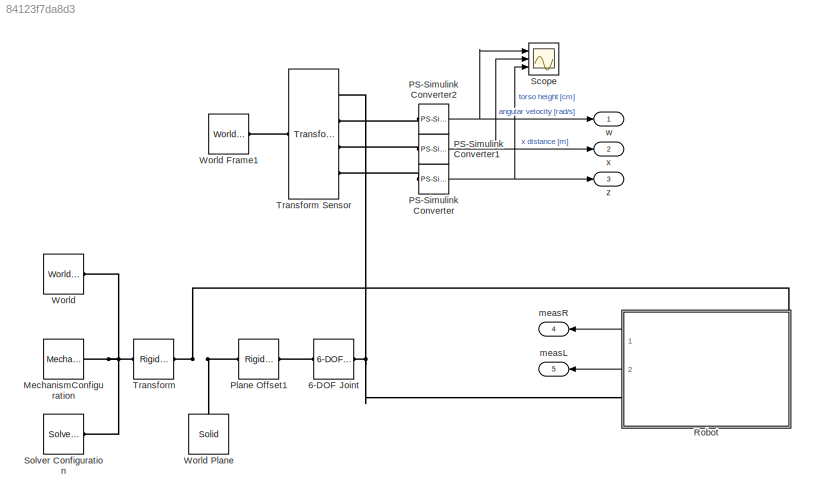
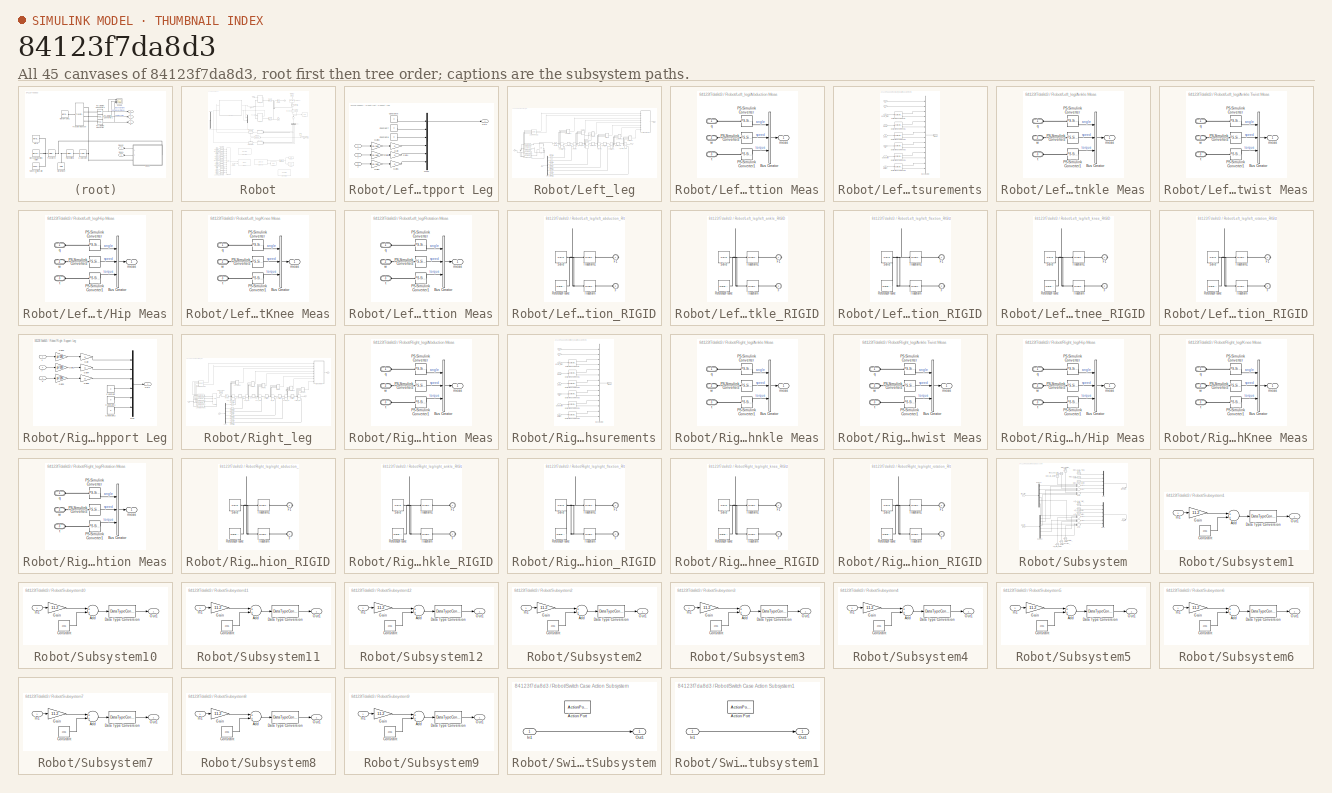
[diagram: thumbnail index - all 45 canvases of the model, root first then tree order]
MODEL slx_84123f7da8d3
KIND model
CONFIG AbsTol = auto
CONFIG EnableMultiTasking = on
CONFIG FixedStep = 0.2
CONFIG MaxStep = auto
CONFIG MinStep = auto
CONFIG RelTol = 1e-3
CONFIG SampleTimeConstraint = Unconstrained
CONFIG Solver = VariableStepAuto
CONFIG SolverName = VariableStepAuto
CONFIG StartTime = 0.0
CONFIG StopTime = 10
WORKSPACE source: external: MAT-File  (data not in archive)
BLOCK [Reference] 6-DOF Joint  REF=sm_lib/Joints/6-DOF Joint
  Ports = [0, 0, 0, 0, 0, 1, 1]
  SourceBlock = sm_lib/Joints/6-DOF Joint
  SourceProductBaseCode = MS
  SourceProductName = Simscape Multibody
  SourceType = 6-DOF Joint
BLOCK [Reference] MechanismConfiguration  REF=sm_lib/Utilities/Mechanism
Configuration
  Ports = [0, 0, 0, 0, 0, 0, 1]
  SourceBlock = sm_lib/Utilities/Mechanism\nConfiguration
  SourceProductBaseCode = MS
  SourceProductName = Simscape Multibody
  SourceType = Mechanism\nConfiguration
BLOCK [Reference] PS-Simulink Converter  REF=nesl_utility/PS-Simulink
Converter
  Ports = [0, 1, 0, 0, 0, 1]
  SourceBlock = nesl_utility/PS-Simulink\nConverter
  SourceProductBaseCode = SS
  SourceProductName = Simscape
  SourceType = PS-Simulink\nConverter
BLOCK [Reference] PS-Simulink Converter1  REF=nesl_utility/PS-Simulink
Converter
  Ports = [0, 1, 0, 0, 0, 1]
  SourceBlock = nesl_utility/PS-Simulink\nConverter
  SourceProductBaseCode = SS
  SourceProductName = Simscape
  SourceType = PS-Simulink\nConverter
BLOCK [Reference] PS-Simulink Converter2  REF=nesl_utility/PS-Simulink
Converter
  Ports = [0, 1, 0, 0, 0, 1]
  SourceBlock = nesl_utility/PS-Simulink\nConverter
  SourceProductBaseCode = SS
  SourceProductName = Simscape
  SourceType = PS-Simulink\nConverter
BLOCK [Reference] Plane Offset1  REF=sm_lib/Frames and
Transforms/Rigid
Transform
  Ports = [0, 0, 0, 0, 0, 1, 1]
  SourceBlock = sm_lib/Frames and\nTransforms/Rigid\nTransform
  SourceProductBaseCode = MS
  SourceProductName = Simscape Multibody
  SourceType = Rigid\nTransform
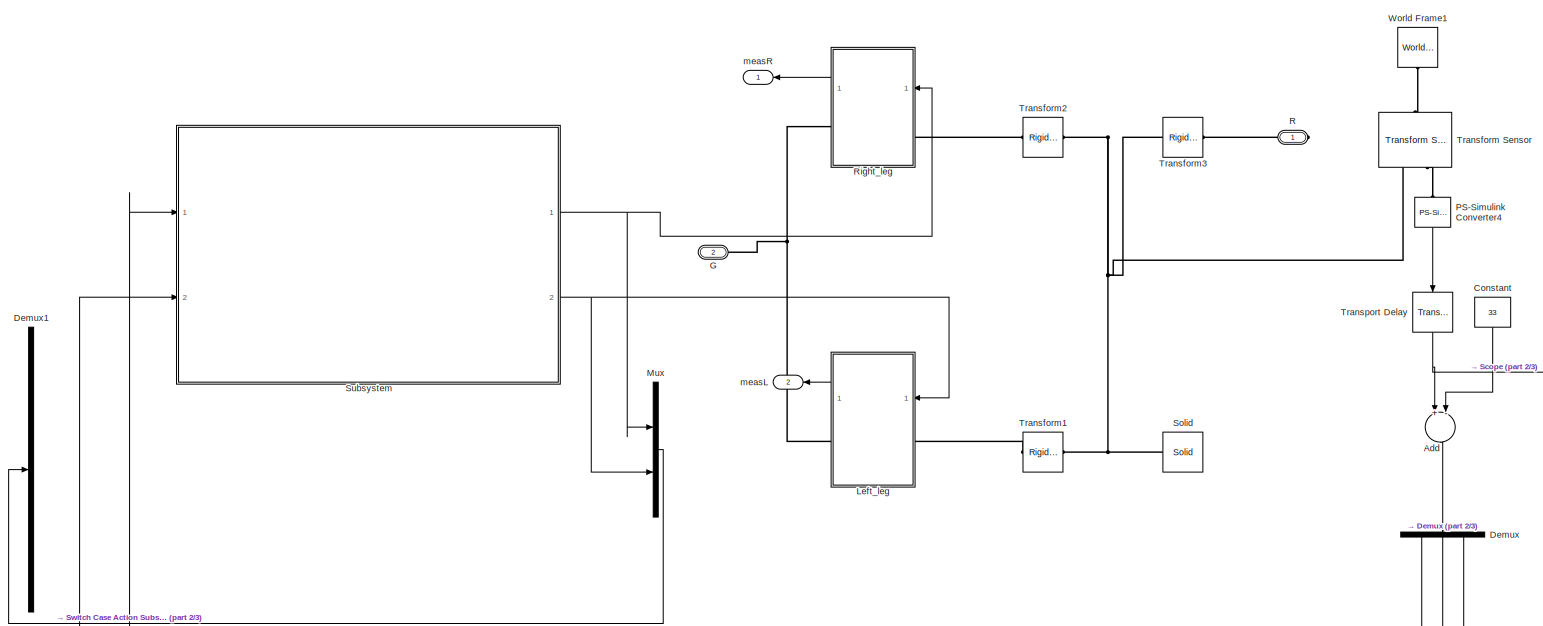
[diagram: Robot - part 1/3, full width, top band]
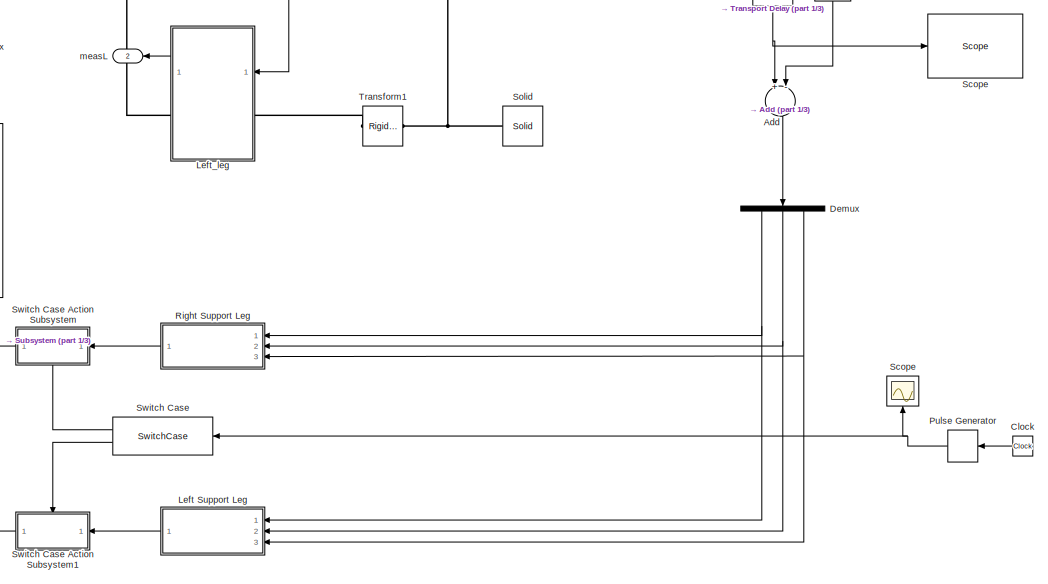
[diagram: Robot - part 2/3, middle right region]
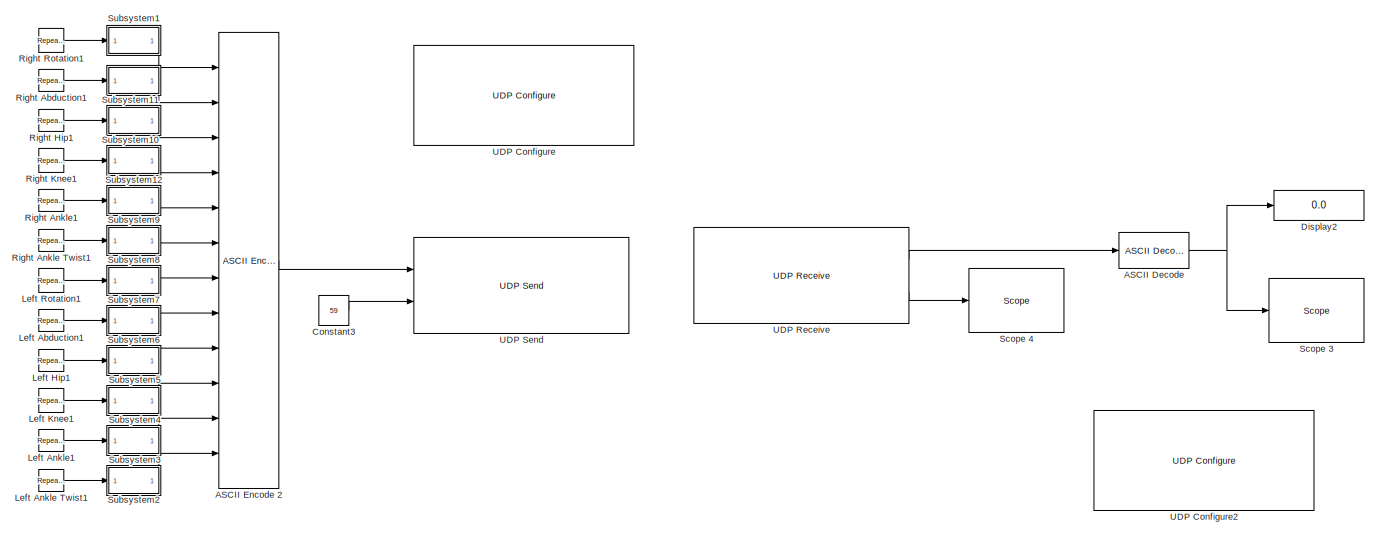
[diagram: Robot - part 3/3, full width, bottom band]
BLOCK [SubSystem] Robot
  Ports = [0, 2, 0, 0, 0, 1, 1]
  RequestExecContextInheritance = off
BLOCK [Reference] Robot/ASCII Decode   REF=xpcseriallib/ASCII Decode 
  Commented = on
  Ports = [1, 1]
  SourceBlock = xpcseriallib/ASCII Decode
  SourceProductBaseCode = XP
  SourceProductName = Simulink Real-Time
  SourceType = ASCII Decode
BLOCK [Reference] Robot/ASCII Encode 2  REF=xpcseriallib/ASCII Encode 
  Ports = [12, 1]
  SourceBlock = xpcseriallib/ASCII Encode
  SourceProductBaseCode = XP
  SourceProductName = Simulink Real-Time
  SourceType = ASCII Encode
BLOCK [Sum] Robot/Add
  InputSameDT = off
  Inputs = +-
  OutDataTypeStr = Inherit: Inherit via internal rule
  Ports = [2, 1]
  SaturateOnIntegerOverflow = off
BLOCK [Clock] Robot/Clock
BLOCK [Constant] Robot/Constant
  Value = 33
BLOCK [Constant] Robot/Constant3
  Value = 59
BLOCK [Demux] Robot/Demux
  DisplayOption = bar
  Outputs = 3
  Ports = [1, 3]
BLOCK [Demux] Robot/Demux1
  DisplayOption = bar
  Outputs = 12
  Ports = [1, 12]
BLOCK [Display] Robot/Display2
  Commented = on
  Decimation = 1
  Ports = [1]
BLOCK [PMIOPort] Robot/G
  Port = 2
  Side = Left
BLOCK [Reference] Robot/Left Abduction1  REF=simulink/Sources/Repeating
Sequence
  Ports = [0, 1]
  SourceBlock = simulink/Sources/Repeating\nSequence
  SourceProductBaseCode = SL
  SourceProductName = Simulink
  SourceType = Repeating table
BLOCK [Reference] Robot/Left Ankle Twist1  REF=simulink/Sources/Repeating
Sequence
  Ports = [0, 1]
  SourceBlock = simulink/Sources/Repeating\nSequence
  SourceProductBaseCode = SL
  SourceProductName = Simulink
  SourceType = Repeating table
BLOCK [Reference] Robot/Left Ankle1  REF=simulink/Sources/Repeating
Sequence
  Ports = [0, 1]
  SourceBlock = simulink/Sources/Repeating\nSequence
  SourceProductBaseCode = SL
  SourceProductName = Simulink
  SourceType = Repeating table
BLOCK [Reference] Robot/Left Hip1  REF=simulink/Sources/Repeating
Sequence
  Ports = [0, 1]
  SourceBlock = simulink/Sources/Repeating\nSequence
  SourceProductBaseCode = SL
  SourceProductName = Simulink
  SourceType = Repeating table
BLOCK [Reference] Robot/Left Knee1  REF=simulink/Sources/Repeating
Sequence
  Ports = [0, 1]
  SourceBlock = simulink/Sources/Repeating\nSequence
  SourceProductBaseCode = SL
  SourceProductName = Simulink
  SourceType = Repeating table
BLOCK [Reference] Robot/Left Rotation1  REF=simulink/Sources/Repeating
Sequence
  Ports = [0, 1]
  SourceBlock = simulink/Sources/Repeating\nSequence
  SourceProductBaseCode = SL
  SourceProductName = Simulink
  SourceType = Repeating table
BLOCK [SubSystem] Robot/Left Support Leg
  Ports = [3, 1]
  RequestExecContextInheritance = off
BLOCK [Constant] Robot/Left Support Leg/Constant6
  Value = 0
BLOCK [Constant] Robot/Left Support Leg/Constant7
  Value = 0
BLOCK [Constant] Robot/Left Support Leg/Constant8
  Value = 0
BLOCK [Gain] Robot/Left Support Leg/Gain
  Gain = 0
  OutDataTypeStr = Inherit: Inherit via internal rule
  ParamDataTypeStr = Inherit: Inherit via internal rule
  SaturateOnIntegerOverflow = off
BLOCK [Gain] Robot/Left Support Leg/Gain1
  Gain = pi/180
  OutDataTypeStr = Inherit: Inherit via internal rule
  ParamDataTypeStr = Inherit: Inherit via internal rule
  SaturateOnIntegerOverflow = off
BLOCK [Gain] Robot/Left Support Leg/Gain2
  Gain = pi/180
  OutDataTypeStr = Inherit: Inherit via internal rule
  ParamDataTypeStr = Inherit: Inherit via internal rule
  SaturateOnIntegerOverflow = off
BLOCK [Gain] Robot/Left Support Leg/Gain3
  Gain = pi/180
  OutDataTypeStr = Inherit: Inherit via internal rule
  ParamDataTypeStr = Inherit: Inherit via internal rule
  SaturateOnIntegerOverflow = off
BLOCK [Gain] Robot/Left Support Leg/Gain4
  Gain = 0
  OutDataTypeStr = Inherit: Inherit via internal rule
  ParamDataTypeStr = Inherit: Inherit via internal rule
  SaturateOnIntegerOverflow = off
BLOCK [Gain] Robot/Left Support Leg/Gain5
  Gain = 0
  OutDataTypeStr = Inherit: Inherit via internal rule
  ParamDataTypeStr = Inherit: Inherit via internal rule
  SaturateOnIntegerOverflow = off
BLOCK [Mux] Robot/Left Support Leg/Mux1
  DisplayOption = bar
  Inputs = 6
  Ports = [6, 1]
BLOCK [Outport] Robot/Left Support Leg/Out1
  IconDisplay = Port number
BLOCK [Inport] Robot/Left Support Leg/x
  IconDisplay = Port number
BLOCK [Inport] Robot/Left Support Leg/y
  IconDisplay = Port number
  Port = 2
BLOCK [Inport] Robot/Left Support Leg/z
  IconDisplay = Port number
  Port = 3
BLOCK [SubSystem] Robot/Left_leg
  Ports = [1, 1, 0, 0, 0, 1, 1]
  RequestExecContextInheritance = off
BLOCK [SubSystem] Robot/Left_leg/Abduction Meas
  Ports = [0, 1, 0, 0, 0, 3]
  RequestExecContextInheritance = off
BLOCK [BusCreator] Robot/Left_leg/Abduction Meas/Bus Creator
  DisplayOption = bar
  InheritFromInputs = on
  Inputs = 3
  Ports = [3, 1]
BLOCK [Reference] Robot/Left_leg/Abduction Meas/PS-Simulink Converter  REF=nesl_utility/PS-Simulink
Converter
  Ports = [0, 1, 0, 0, 0, 1]
  SourceBlock = nesl_utility/PS-Simulink\nConverter
  SourceProductBaseCode = SS
  SourceProductName = Simscape
  SourceType = PS-Simulink\nConverter
BLOCK [Reference] Robot/Left_leg/Abduction Meas/PS-Simulink Converter1  REF=nesl_utility/PS-Simulink
Converter
  Ports = [0, 1, 0, 0, 0, 1]
  SourceBlock = nesl_utility/PS-Simulink\nConverter
  SourceProductBaseCode = SS
  SourceProductName = Simscape
  SourceType = PS-Simulink\nConverter
BLOCK [Reference] Robot/Left_leg/Abduction Meas/PS-Simulink Converter2  REF=nesl_utility/PS-Simulink
Converter
  Ports = [0, 1, 0, 0, 0, 1]
  SourceBlock = nesl_utility/PS-Simulink\nConverter
  SourceProductBaseCode = SS
  SourceProductName = Simscape
  SourceType = PS-Simulink\nConverter
BLOCK [Outport] Robot/Left_leg/Abduction Meas/meas
  IconDisplay = Port number
BLOCK [PMIOPort] Robot/Left_leg/Abduction Meas/q
  Side = Left
BLOCK [PMIOPort] Robot/Left_leg/Abduction Meas/t
  Port = 3
  Side = Left
BLOCK [PMIOPort] Robot/Left_leg/Abduction Meas/w
  Port = 2
  Side = Left
BLOCK [SubSystem] Robot/Left_leg/All measurements
  Ports = [8, 1]
  RequestExecContextInheritance = off
BLOCK [BusCreator] Robot/Left_leg/All measurements/Bus Creator3
  DisplayOption = bar
  InheritFromInputs = on
  Inputs = 14
  Ports = [14, 1]
BLOCK [Reference] Robot/Left_leg/All measurements/Extract Measurements  REF=walkingRobotUtils/Package 
Measurements/Extract Measurements
  Ports = [1, 2]
  SourceBlock = walkingRobotUtils/Package \nMeasurements/Extract Measurements
  SourceType = SubSystem
BLOCK [Reference] Robot/Left_leg/All measurements/Extract Measurements1  REF=walkingRobotUtils/Package 
Measurements/Extract Measurements
  Ports = [1, 2]
  SourceBlock = walkingRobotUtils/Package \nMeasurements/Extract Measurements
  SourceType = SubSystem
BLOCK [Reference] Robot/Left_leg/All measurements/Extract Measurements2  REF=walkingRobotUtils/Package 
Measurements/Extract Measurements
  Ports = [1, 2]
  SourceBlock = walkingRobotUtils/Package \nMeasurements/Extract Measurements
  SourceType = SubSystem
BLOCK [Reference] Robot/Left_leg/All measurements/Extract Measurements3  REF=walkingRobotUtils/Package 
Measurements/Extract Measurements
  Ports = [1, 2]
  SourceBlock = walkingRobotUtils/Package \nMeasurements/Extract Measurements
  SourceType = SubSystem
BLOCK [Reference] Robot/Left_leg/All measurements/Extract Measurements4  REF=walkingRobotUtils/Package 
Measurements/Extract Measurements
  Ports = [1, 2]
  SourceBlock = walkingRobotUtils/Package \nMeasurements/Extract Measurements
  SourceType = SubSystem
BLOCK [Reference] Robot/Left_leg/All measurements/Extract Measurements5  REF=walkingRobotUtils/Package 
Measurements/Extract Measurements
  Ports = [1, 2]
  SourceBlock = walkingRobotUtils/Package \nMeasurements/Extract Measurements
  SourceType = SubSystem
BLOCK [Inport] Robot/Left_leg/All measurements/Ff
  IconDisplay = Port number
  Port = 2
BLOCK [Inport] Robot/Left_leg/All measurements/Fn
  IconDisplay = Port number
BLOCK [Inport] Robot/Left_leg/All measurements/abduction
  IconDisplay = Port number
  Port = 7
BLOCK [Inport] Robot/Left_leg/All measurements/ankle
  IconDisplay = Port number
  Port = 4
BLOCK [Inport] Robot/Left_leg/All measurements/ankle_twist
  IconDisplay = Port number
  Port = 3
BLOCK [Inport] Robot/Left_leg/All measurements/hip
  IconDisplay = Port number
  Port = 6
BLOCK [Inport] Robot/Left_leg/All measurements/knee
  IconDisplay = Port number
  Port = 5
BLOCK [Outport] Robot/Left_leg/All measurements/meas
  IconDisplay = Port number
BLOCK [Inport] Robot/Left_leg/All measurements/rotation
  IconDisplay = Port number
  Port = 8
BLOCK [SubSystem] Robot/Left_leg/Ankle Meas
  Ports = [0, 1, 0, 0, 0, 3]
  RequestExecContextInheritance = off
BLOCK [BusCreator] Robot/Left_leg/Ankle Meas/Bus Creator
  DisplayOption = bar
  InheritFromInputs = on
  Inputs = 3
  Ports = [3, 1]
BLOCK [Reference] Robot/Left_leg/Ankle Meas/PS-Simulink Converter  REF=nesl_utility/PS-Simulink
Converter
  Ports = [0, 1, 0, 0, 0, 1]
  SourceBlock = nesl_utility/PS-Simulink\nConverter
  SourceProductBaseCode = SS
  SourceProductName = Simscape
  SourceType = PS-Simulink\nConverter
BLOCK [Reference] Robot/Left_leg/Ankle Meas/PS-Simulink Converter1  REF=nesl_utility/PS-Simulink
Converter
  Ports = [0, 1, 0, 0, 0, 1]
  SourceBlock = nesl_utility/PS-Simulink\nConverter
  SourceProductBaseCode = SS
  SourceProductName = Simscape
  SourceType = PS-Simulink\nConverter
BLOCK [Reference] Robot/Left_leg/Ankle Meas/PS-Simulink Converter2  REF=nesl_utility/PS-Simulink
Converter
  Ports = [0, 1, 0, 0, 0, 1]
  SourceBlock = nesl_utility/PS-Simulink\nConverter
  SourceProductBaseCode = SS
  SourceProductName = Simscape
  SourceType = PS-Simulink\nConverter
BLOCK [Outport] Robot/Left_leg/Ankle Meas/meas
  IconDisplay = Port number
BLOCK [PMIOPort] Robot/Left_leg/Ankle Meas/q
  Side = Left
BLOCK [PMIOPort] Robot/Left_leg/Ankle Meas/t
  Port = 3
  Side = Left
BLOCK [PMIOPort] Robot/Left_leg/Ankle Meas/w
  Port = 2
  Side = Left
BLOCK [SubSystem] Robot/Left_leg/Ankle Twist Meas
  Ports = [0, 1, 0, 0, 0, 3]
  RequestExecContextInheritance = off
BLOCK [BusCreator] Robot/Left_leg/Ankle Twist Meas/Bus Creator
  DisplayOption = bar
  InheritFromInputs = on
  Inputs = 3
  Ports = [3, 1]
BLOCK [Reference] Robot/Left_leg/Ankle Twist Meas/PS-Simulink Converter  REF=nesl_utility/PS-Simulink
Converter
  Ports = [0, 1, 0, 0, 0, 1]
  SourceBlock = nesl_utility/PS-Simulink\nConverter
  SourceProductBaseCode = SS
  SourceProductName = Simscape
  SourceType = PS-Simulink\nConverter
BLOCK [Reference] Robot/Left_leg/Ankle Twist Meas/PS-Simulink Converter1  REF=nesl_utility/PS-Simulink
Converter
  Ports = [0, 1, 0, 0, 0, 1]
  SourceBlock = nesl_utility/PS-Simulink\nConverter
  SourceProductBaseCode = SS
  SourceProductName = Simscape
  SourceType = PS-Simulink\nConverter
BLOCK [Reference] Robot/Left_leg/Ankle Twist Meas/PS-Simulink Converter2  REF=nesl_utility/PS-Simulink
Converter
  Ports = [0, 1, 0, 0, 0, 1]
  SourceBlock = nesl_utility/PS-Simulink\nConverter
  SourceProductBaseCode = SS
  SourceProductName = Simscape
  SourceType = PS-Simulink\nConverter
BLOCK [Outport] Robot/Left_leg/Ankle Twist Meas/meas
  IconDisplay = Port number
BLOCK [PMIOPort] Robot/Left_leg/Ankle Twist Meas/q
  Side = Left
BLOCK [PMIOPort] Robot/Left_leg/Ankle Twist Meas/t
  Port = 3
  Side = Left
BLOCK [PMIOPort] Robot/Left_leg/Ankle Twist Meas/w
  Port = 2
  Side = Left
BLOCK [Reference] Robot/Left_leg/Ankle_joint  REF=sm_lib/Joints/Revolute Joint
  Ports = [0, 0, 0, 0, 0, 2, 4]
  SourceBlock = sm_lib/Joints/Revolute Joint
  SourceProductBaseCode = MS
  SourceProductName = Simscape Multibody
  SourceType = Revolute Joint
BLOCK [Reference] Robot/Left_leg/Contact Force Logging  REF=walkingRobotUtils/Contact Force Logging
  Ports = [4, 2]
  SourceBlock = walkingRobotUtils/Contact Force Logging
  SourceType = SubSystem
BLOCK [Demux] Robot/Left_leg/Demux
  DisplayOption = bar
  Outputs = 6
  Ports = [1, 6]
BLOCK [PMIOPort] Robot/Left_leg/G
  Port = 2
  Side = Right
BLOCK [PMIOPort] Robot/Left_leg/H
  Side = Left
BLOCK [SubSystem] Robot/Left_leg/Hip Meas
  Ports = [0, 1, 0, 0, 0, 3]
  RequestExecContextInheritance = off
BLOCK [BusCreator] Robot/Left_leg/Hip Meas/Bus Creator
  DisplayOption = bar
  InheritFromInputs = on
  Inputs = 3
  Ports = [3, 1]
BLOCK [Reference] Robot/Left_leg/Hip Meas/PS-Simulink Converter  REF=nesl_utility/PS-Simulink
Converter
  Ports = [0, 1, 0, 0, 0, 1]
  SourceBlock = nesl_utility/PS-Simulink\nConverter
  SourceProductBaseCode = SS
  SourceProductName = Simscape
  SourceType = PS-Simulink\nConverter
BLOCK [Reference] Robot/Left_leg/Hip Meas/PS-Simulink Converter1  REF=nesl_utility/PS-Simulink
Converter
  Ports = [0, 1, 0, 0, 0, 1]
  SourceBlock = nesl_utility/PS-Simulink\nConverter
  SourceProductBaseCode = SS
  SourceProductName = Simscape
  SourceType = PS-Simulink\nConverter
BLOCK [Reference] Robot/Left_leg/Hip Meas/PS-Simulink Converter2  REF=nesl_utility/PS-Simulink
Converter
  Ports = [0, 1, 0, 0, 0, 1]
  SourceBlock = nesl_utility/PS-Simulink\nConverter
  SourceProductBaseCode = SS
  SourceProductName = Simscape
  SourceType = PS-Simulink\nConverter
BLOCK [Outport] Robot/Left_leg/Hip Meas/meas
  IconDisplay = Port number
BLOCK [PMIOPort] Robot/Left_leg/Hip Meas/q
  Side = Left
BLOCK [PMIOPort] Robot/Left_leg/Hip Meas/t
  Port = 3
  Side = Left
BLOCK [PMIOPort] Robot/Left_leg/Hip Meas/w
  Port = 2
  Side = Left
BLOCK [Reference] Robot/Left_leg/Hip_Joint  REF=sm_lib/Joints/Revolute Joint
  Ports = [0, 0, 0, 0, 0, 2, 4]
  SourceBlock = sm_lib/Joints/Revolute Joint
  SourceProductBaseCode = MS
  SourceProductName = Simscape Multibody
  SourceType = Revolute Joint
BLOCK [SubSystem] Robot/Left_leg/Knee Meas
  Ports = [0, 1, 0, 0, 0, 3]
  RequestExecContextInheritance = off
BLOCK [BusCreator] Robot/Left_leg/Knee Meas/Bus Creator
  DisplayOption = bar
  InheritFromInputs = on
  Inputs = 3
  Ports = [3, 1]
BLOCK [Reference] Robot/Left_leg/Knee Meas/PS-Simulink Converter  REF=nesl_utility/PS-Simulink
Converter
  Ports = [0, 1, 0, 0, 0, 1]
  SourceBlock = nesl_utility/PS-Simulink\nConverter
  SourceProductBaseCode = SS
  SourceProductName = Simscape
  SourceType = PS-Simulink\nConverter
BLOCK [Reference] Robot/Left_leg/Knee Meas/PS-Simulink Converter1  REF=nesl_utility/PS-Simulink
Converter
  Ports = [0, 1, 0, 0, 0, 1]
  SourceBlock = nesl_utility/PS-Simulink\nConverter
  SourceProductBaseCode = SS
  SourceProductName = Simscape
  SourceType = PS-Simulink\nConverter
BLOCK [Reference] Robot/Left_leg/Knee Meas/PS-Simulink Converter2  REF=nesl_utility/PS-Simulink
Converter
  Ports = [0, 1, 0, 0, 0, 1]
  SourceBlock = nesl_utility/PS-Simulink\nConverter
  SourceProductBaseCode = SS
  SourceProductName = Simscape
  SourceType = PS-Simulink\nConverter
BLOCK [Outport] Robot/Left_leg/Knee Meas/meas
  IconDisplay = Port number
BLOCK [PMIOPort] Robot/Left_leg/Knee Meas/q
  Side = Left
BLOCK [PMIOPort] Robot/Left_leg/Knee Meas/t
  Port = 3
  Side = Left
BLOCK [PMIOPort] Robot/Left_leg/Knee Meas/w
  Port = 2
  Side = Left
BLOCK [Reference] Robot/Left_leg/Knee_joint  REF=sm_lib/Joints/Revolute Joint
  Ports = [0, 0, 0, 0, 0, 2, 4]
  SourceBlock = sm_lib/Joints/Revolute Joint
  SourceProductBaseCode = MS
  SourceProductName = Simscape Multibody
  SourceType = Revolute Joint
BLOCK [Reference] Robot/Left_leg/Left_Abduction_Joint  REF=sm_lib/Joints/Revolute Joint
  Ports = [0, 0, 0, 0, 0, 2, 4]
  SourceBlock = sm_lib/Joints/Revolute Joint
  SourceProductBaseCode = MS
  SourceProductName = Simscape Multibody
  SourceType = Revolute Joint
BLOCK [Reference] Robot/Left_leg/Left_Ankle_Twist_Joint  REF=sm_lib/Joints/Revolute Joint
  Ports = [0, 0, 0, 0, 0, 2, 4]
  SourceBlock = sm_lib/Joints/Revolute Joint
  SourceProductBaseCode = MS
  SourceProductName = Simscape Multibody
  SourceType = Revolute Joint
BLOCK [Reference] Robot/Left_leg/Left_Rotation_Joint  REF=sm_lib/Joints/Revolute Joint
  Ports = [0, 0, 0, 0, 0, 2, 4]
  SourceBlock = sm_lib/Joints/Revolute Joint
  SourceProductBaseCode = MS
  SourceProductName = Simscape Multibody
  SourceType = Revolute Joint
BLOCK [SubSystem] Robot/Left_leg/Rotation Meas
  Ports = [0, 1, 0, 0, 0, 3]
  RequestExecContextInheritance = off
BLOCK [BusCreator] Robot/Left_leg/Rotation Meas/Bus Creator
  DisplayOption = bar
  InheritFromInputs = on
  Inputs = 3
  Ports = [3, 1]
BLOCK [Reference] Robot/Left_leg/Rotation Meas/PS-Simulink Converter  REF=nesl_utility/PS-Simulink
Converter
  Ports = [0, 1, 0, 0, 0, 1]
  SourceBlock = nesl_utility/PS-Simulink\nConverter
  SourceProductBaseCode = SS
  SourceProductName = Simscape
  SourceType = PS-Simulink\nConverter
BLOCK [Reference] Robot/Left_leg/Rotation Meas/PS-Simulink Converter1  REF=nesl_utility/PS-Simulink
Converter
  Ports = [0, 1, 0, 0, 0, 1]
  SourceBlock = nesl_utility/PS-Simulink\nConverter
  SourceProductBaseCode = SS
  SourceProductName = Simscape
  SourceType = PS-Simulink\nConverter
BLOCK [Reference] Robot/Left_leg/Rotation Meas/PS-Simulink Converter2  REF=nesl_utility/PS-Simulink
Converter
  Ports = [0, 1, 0, 0, 0, 1]
  SourceBlock = nesl_utility/PS-Simulink\nConverter
  SourceProductBaseCode = SS
  SourceProductName = Simscape
  SourceType = PS-Simulink\nConverter
BLOCK [Outport] Robot/Left_leg/Rotation Meas/meas
  IconDisplay = Port number
BLOCK [PMIOPort] Robot/Left_leg/Rotation Meas/q
  Side = Left
BLOCK [PMIOPort] Robot/Left_leg/Rotation Meas/t
  Port = 3
  Side = Left
BLOCK [PMIOPort] Robot/Left_leg/Rotation Meas/w
  Port = 2
  Side = Left
BLOCK [Reference] Robot/Left_leg/Simulink-PS Converter  REF=nesl_utility/Simulink-PS
Converter
  Ports = [1, 0, 0, 0, 0, 0, 1]
  SourceBlock = nesl_utility/Simulink-PS\nConverter
  SourceProductBaseCode = SS
  SourceProductName = Simscape
  SourceType = Simulink-PS\nConverter
BLOCK [Reference] Robot/Left_leg/Simulink-PS Converter1  REF=nesl_utility/Simulink-PS
Converter
  Ports = [1, 0, 0, 0, 0, 0, 1]
  SourceBlock = nesl_utility/Simulink-PS\nConverter
  SourceProductBaseCode = SS
  SourceProductName = Simscape
  SourceType = Simulink-PS\nConverter
BLOCK [Reference] Robot/Left_leg/Simulink-PS Converter2  REF=nesl_utility/Simulink-PS
Converter
  Ports = [1, 0, 0, 0, 0, 0, 1]
  SourceBlock = nesl_utility/Simulink-PS\nConverter
  SourceProductBaseCode = SS
  SourceProductName = Simscape
  SourceType = Simulink-PS\nConverter
BLOCK [Reference] Robot/Left_leg/Simulink-PS Converter3  REF=nesl_utility/Simulink-PS
Converter
  Ports = [1, 0, 0, 0, 0, 0, 1]
  SourceBlock = nesl_utility/Simulink-PS\nConverter
  SourceProductBaseCode = SS
  SourceProductName = Simscape
  SourceType = Simulink-PS\nConverter
BLOCK [Reference] Robot/Left_leg/Simulink-PS Converter4  REF=nesl_utility/Simulink-PS
Converter
  Ports = [1, 0, 0, 0, 0, 0, 1]
  SourceBlock = nesl_utility/Simulink-PS\nConverter
  SourceProductBaseCode = SS
  SourceProductName = Simscape
  SourceType = Simulink-PS\nConverter
BLOCK [Reference] Robot/Left_leg/Simulink-PS Converter5  REF=nesl_utility/Simulink-PS
Converter
  Ports = [1, 0, 0, 0, 0, 0, 1]
  SourceBlock = nesl_utility/Simulink-PS\nConverter
  SourceProductBaseCode = SS
  SourceProductName = Simscape
  SourceType = Simulink-PS\nConverter
BLOCK [Reference] Robot/Left_leg/Solid  REF=sm_lib/Body Elements/Solid
  Ports = [0, 0, 0, 0, 0, 3, 2]
  SourceBlock = sm_lib/Body Elements/Solid
  SourceProductBaseCode = MS
  SourceProductName = Simscape Multibody
  SourceType = Solid
BLOCK [Reference] Robot/Left_leg/Sphere to Plane Force  REF=Contact_Forces_Lib/3D/Sphere to Plane Force
  Ports = [0, 1, 0, 0, 0, 1, 1]
  SourceBlock = Contact_Forces_Lib/3D/Sphere to Plane Force
  SourceProductName = Simscape Multibody Contact Forces Library
  SourceType = Sphere to Plane Force
BLOCK [Reference] Robot/Left_leg/Sphere to Plane Force1  REF=Contact_Forces_Lib/3D/Sphere to Plane Force
  Ports = [0, 1, 0, 0, 0, 1, 1]
  SourceBlock = Contact_Forces_Lib/3D/Sphere to Plane Force
  SourceProductName = Simscape Multibody Contact Forces Library
  SourceType = Sphere to Plane Force
BLOCK [Reference] Robot/Left_leg/Sphere to Plane Force2  REF=Contact_Forces_Lib/3D/Sphere to Plane Force
  Ports = [0, 1, 0, 0, 0, 1, 1]
  SourceBlock = Contact_Forces_Lib/3D/Sphere to Plane Force
  SourceProductName = Simscape Multibody Contact Forces Library
  SourceType = Sphere to Plane Force
BLOCK [Reference] Robot/Left_leg/Sphere to Plane Force3  REF=Contact_Forces_Lib/3D/Sphere to Plane Force
  Ports = [0, 1, 0, 0, 0, 1, 1]
  SourceBlock = Contact_Forces_Lib/3D/Sphere to Plane Force
  SourceProductName = Simscape Multibody Contact Forces Library
  SourceType = Sphere to Plane Force
BLOCK [Reference] Robot/Left_leg/Transform  REF=sm_lib/Frames and
Transforms/Rigid
Transform
  Ports = [0, 0, 0, 0, 0, 1, 1]
  SourceBlock = sm_lib/Frames and\nTransforms/Rigid\nTransform
  SourceProductBaseCode = MS
  SourceProductName = Simscape Multibody
  SourceType = Rigid\nTransform
BLOCK [SubSystem] Robot/Left_leg/left_abduction_RIGID
  Ports = [0, 0, 0, 0, 0, 1, 1]
  RequestExecContextInheritance = off
BLOCK [PMIOPort] Robot/Left_leg/left_abduction_RIGID/F
  Port = 2
  Side = Left
BLOCK [PMIOPort] Robot/Left_leg/left_abduction_RIGID/F1
  Side = Right
BLOCK [Reference] Robot/Left_leg/left_abduction_RIGID/ReferenceFrame  REF=sm_lib/Frames and
Transforms/Reference
Frame
  Ports = [0, 0, 0, 0, 0, 0, 1]
  SourceBlock = sm_lib/Frames and\nTransforms/Reference\nFrame
  SourceProductBaseCode = MS
  SourceProductName = Simscape Multibody
  SourceType = Reference\nFrame
BLOCK [Reference] Robot/Left_leg/left_abduction_RIGID/Solid  REF=sm_lib/Body Elements/Solid
  Ports = [0, 0, 0, 0, 0, 0, 1]
  SourceBlock = sm_lib/Body Elements/Solid
  SourceProductBaseCode = MS
  SourceProductName = Simscape Multibody
  SourceType = Solid
BLOCK [Reference] Robot/Left_leg/left_abduction_RIGID/Transform  REF=sm_lib/Frames and
Transforms/Rigid
Transform
  Ports = [0, 0, 0, 0, 0, 1, 1]
  SourceBlock = sm_lib/Frames and\nTransforms/Rigid\nTransform
  SourceProductBaseCode = MS
  SourceProductName = Simscape Multibody
  SourceType = Rigid\nTransform
BLOCK [Reference] Robot/Left_leg/left_abduction_RIGID/Transform1  REF=sm_lib/Frames and
Transforms/Rigid
Transform
  Ports = [0, 0, 0, 0, 0, 1, 1]
  SourceBlock = sm_lib/Frames and\nTransforms/Rigid\nTransform
  SourceProductBaseCode = MS
  SourceProductName = Simscape Multibody
  SourceType = Rigid\nTransform
BLOCK [SubSystem] Robot/Left_leg/left_ankle_RIGID
  Ports = [0, 0, 0, 0, 0, 1, 1]
  RequestExecContextInheritance = off
BLOCK [PMIOPort] Robot/Left_leg/left_ankle_RIGID/F
  Port = 2
  Side = Left
BLOCK [PMIOPort] Robot/Left_leg/left_ankle_RIGID/F1
  Side = Right
BLOCK [Reference] Robot/Left_leg/left_ankle_RIGID/ReferenceFrame  REF=sm_lib/Frames and
Transforms/Reference
Frame
  Ports = [0, 0, 0, 0, 0, 0, 1]
  SourceBlock = sm_lib/Frames and\nTransforms/Reference\nFrame
  SourceProductBaseCode = MS
  SourceProductName = Simscape Multibody
  SourceType = Reference\nFrame
BLOCK [Reference] Robot/Left_leg/left_ankle_RIGID/Solid  REF=sm_lib/Body Elements/Solid
  Ports = [0, 0, 0, 0, 0, 0, 1]
  SourceBlock = sm_lib/Body Elements/Solid
  SourceProductBaseCode = MS
  SourceProductName = Simscape Multibody
  SourceType = Solid
BLOCK [Reference] Robot/Left_leg/left_ankle_RIGID/Transform  REF=sm_lib/Frames and
Transforms/Rigid
Transform
  Ports = [0, 0, 0, 0, 0, 1, 1]
  SourceBlock = sm_lib/Frames and\nTransforms/Rigid\nTransform
  SourceProductBaseCode = MS
  SourceProductName = Simscape Multibody
  SourceType = Rigid\nTransform
BLOCK [Reference] Robot/Left_leg/left_ankle_RIGID/Transform1  REF=sm_lib/Frames and
Transforms/Rigid
Transform
  Ports = [0, 0, 0, 0, 0, 1, 1]
  SourceBlock = sm_lib/Frames and\nTransforms/Rigid\nTransform
  SourceProductBaseCode = MS
  SourceProductName = Simscape Multibody
  SourceType = Rigid\nTransform
BLOCK [SubSystem] Robot/Left_leg/left_flextion_RIGID
  Ports = [0, 0, 0, 0, 0, 1, 1]
  RequestExecContextInheritance = off
BLOCK [PMIOPort] Robot/Left_leg/left_flextion_RIGID/F
  Port = 2
  Side = Right
BLOCK [PMIOPort] Robot/Left_leg/left_flextion_RIGID/F1
  Side = Left
BLOCK [Reference] Robot/Left_leg/left_flextion_RIGID/ReferenceFrame  REF=sm_lib/Frames and
Transforms/Reference
Frame
  Ports = [0, 0, 0, 0, 0, 0, 1]
  SourceBlock = sm_lib/Frames and\nTransforms/Reference\nFrame
  SourceProductBaseCode = MS
  SourceProductName = Simscape Multibody
  SourceType = Reference\nFrame
BLOCK [Reference] Robot/Left_leg/left_flextion_RIGID/Solid  REF=sm_lib/Body Elements/Solid
  Ports = [0, 0, 0, 0, 0, 0, 1]
  SourceBlock = sm_lib/Body Elements/Solid
  SourceProductBaseCode = MS
  SourceProductName = Simscape Multibody
  SourceType = Solid
BLOCK [Reference] Robot/Left_leg/left_flextion_RIGID/Transform  REF=sm_lib/Frames and
Transforms/Rigid
Transform
  Ports = [0, 0, 0, 0, 0, 1, 1]
  SourceBlock = sm_lib/Frames and\nTransforms/Rigid\nTransform
  SourceProductBaseCode = MS
  SourceProductName = Simscape Multibody
  SourceType = Rigid\nTransform
BLOCK [Reference] Robot/Left_leg/left_flextion_RIGID/Transform1  REF=sm_lib/Frames and
Transforms/Rigid
Transform
  Ports = [0, 0, 0, 0, 0, 1, 1]
  SourceBlock = sm_lib/Frames and\nTransforms/Rigid\nTransform
  SourceProductBaseCode = MS
  SourceProductName = Simscape Multibody
  SourceType = Rigid\nTransform
BLOCK [SubSystem] Robot/Left_leg/left_knee_RIGID
  Ports = [0, 0, 0, 0, 0, 1, 1]
  RequestExecContextInheritance = off
BLOCK [PMIOPort] Robot/Left_leg/left_knee_RIGID/F
  Port = 2
  Side = Left
BLOCK [PMIOPort] Robot/Left_leg/left_knee_RIGID/F1
  Side = Right
BLOCK [Reference] Robot/Left_leg/left_knee_RIGID/ReferenceFrame  REF=sm_lib/Frames and
Transforms/Reference
Frame
  Ports = [0, 0, 0, 0, 0, 0, 1]
  SourceBlock = sm_lib/Frames and\nTransforms/Reference\nFrame
  SourceProductBaseCode = MS
  SourceProductName = Simscape Multibody
  SourceType = Reference\nFrame
BLOCK [Reference] Robot/Left_leg/left_knee_RIGID/Solid  REF=sm_lib/Body Elements/Solid
  Ports = [0, 0, 0, 0, 0, 0, 1]
  SourceBlock = sm_lib/Body Elements/Solid
  SourceProductBaseCode = MS
  SourceProductName = Simscape Multibody
  SourceType = Solid
BLOCK [Reference] Robot/Left_leg/left_knee_RIGID/Transform  REF=sm_lib/Frames and
Transforms/Rigid
Transform
  Ports = [0, 0, 0, 0, 0, 1, 1]
  SourceBlock = sm_lib/Frames and\nTransforms/Rigid\nTransform
  SourceProductBaseCode = MS
  SourceProductName = Simscape Multibody
  SourceType = Rigid\nTransform
BLOCK [Reference] Robot/Left_leg/left_knee_RIGID/Transform1  REF=sm_lib/Frames and
Transforms/Rigid
Transform
  Ports = [0, 0, 0, 0, 0, 1, 1]
  SourceBlock = sm_lib/Frames and\nTransforms/Rigid\nTransform
  SourceProductBaseCode = MS
  SourceProductName = Simscape Multibody
  SourceType = Rigid\nTransform
BLOCK [SubSystem] Robot/Left_leg/left_rotation_RIGID
  Ports = [0, 0, 0, 0, 0, 1, 1]
  RequestExecContextInheritance = off
BLOCK [PMIOPort] Robot/Left_leg/left_rotation_RIGID/F
  Port = 2
  Side = Left
BLOCK [PMIOPort] Robot/Left_leg/left_rotation_RIGID/F1
  Side = Right
BLOCK [Reference] Robot/Left_leg/left_rotation_RIGID/ReferenceFrame  REF=sm_lib/Frames and
Transforms/Reference
Frame
  Ports = [0, 0, 0, 0, 0, 0, 1]
  SourceBlock = sm_lib/Frames and\nTransforms/Reference\nFrame
  SourceProductBaseCode = MS
  SourceProductName = Simscape Multibody
  SourceType = Reference\nFrame
BLOCK [Reference] Robot/Left_leg/left_rotation_RIGID/Solid  REF=sm_lib/Body Elements/Solid
  Ports = [0, 0, 0, 0, 0, 0, 1]
  SourceBlock = sm_lib/Body Elements/Solid
  SourceProductBaseCode = MS
  SourceProductName = Simscape Multibody
  SourceType = Solid
BLOCK [Reference] Robot/Left_leg/left_rotation_RIGID/Transform  REF=sm_lib/Frames and
Transforms/Rigid
Transform
  Ports = [0, 0, 0, 0, 0, 1, 1]
  SourceBlock = sm_lib/Frames and\nTransforms/Rigid\nTransform
  SourceProductBaseCode = MS
  SourceProductName = Simscape Multibody
  SourceType = Rigid\nTransform
BLOCK [Reference] Robot/Left_leg/left_rotation_RIGID/Transform1  REF=sm_lib/Frames and
Transforms/Rigid
Transform
  Ports = [0, 0, 0, 0, 0, 1, 1]
  SourceBlock = sm_lib/Frames and\nTransforms/Rigid\nTransform
  SourceProductBaseCode = MS
  SourceProductName = Simscape Multibody
  SourceType = Rigid\nTransform
BLOCK [Outport] Robot/Left_leg/meas
  IconDisplay = Port number
BLOCK [Inport] Robot/Left_leg/qRef
  IconDisplay = Port number
BLOCK [Mux] Robot/Mux
  DisplayOption = bar
  Inputs = 2
  Ports = [2, 1]
BLOCK [Reference] Robot/PS-Simulink Converter4  REF=nesl_utility/PS-Simulink
Converter
  Ports = [0, 1, 0, 0, 0, 1]
  SourceBlock = nesl_utility/PS-Simulink\nConverter
  SourceProductBaseCode = SS
  SourceProductName = Simscape
  SourceType = PS-Simulink\nConverter
BLOCK [DiscretePulseGenerator] Robot/Pulse Generator
  Period = 1
  Ports = [1, 1]
  PulseType = Time based
  PulseWidth = 50
  TimeSource = Use external signal
BLOCK [PMIOPort] Robot/R
  Side = Right
BLOCK [Reference] Robot/Right Abduction1  REF=simulink/Sources/Repeating
Sequence
  Ports = [0, 1]
  SourceBlock = simulink/Sources/Repeating\nSequence
  SourceProductBaseCode = SL
  SourceProductName = Simulink
  SourceType = Repeating table
BLOCK [Reference] Robot/Right Ankle Twist1  REF=simulink/Sources/Repeating
Sequence
  Ports = [0, 1]
  SourceBlock = simulink/Sources/Repeating\nSequence
  SourceProductBaseCode = SL
  SourceProductName = Simulink
  SourceType = Repeating table
BLOCK [Reference] Robot/Right Ankle1  REF=simulink/Sources/Repeating
Sequence
  Ports = [0, 1]
  SourceBlock = simulink/Sources/Repeating\nSequence
  SourceProductBaseCode = SL
  SourceProductName = Simulink
  SourceType = Repeating table
BLOCK [Reference] Robot/Right Hip1  REF=simulink/Sources/Repeating
Sequence
  Ports = [0, 1]
  SourceBlock = simulink/Sources/Repeating\nSequence
  SourceProductBaseCode = SL
  SourceProductName = Simulink
  SourceType = Repeating table
BLOCK [Reference] Robot/Right Knee1  REF=simulink/Sources/Repeating
Sequence
  Ports = [0, 1]
  SourceBlock = simulink/Sources/Repeating\nSequence
  SourceProductBaseCode = SL
  SourceProductName = Simulink
  SourceType = Repeating table
BLOCK [Reference] Robot/Right Rotation1  REF=simulink/Sources/Repeating
Sequence
  Ports = [0, 1]
  SourceBlock = simulink/Sources/Repeating\nSequence
  SourceProductBaseCode = SL
  SourceProductName = Simulink
  SourceType = Repeating table
BLOCK [SubSystem] Robot/Right Support Leg
  Ports = [3, 1]
  RequestExecContextInheritance = off
BLOCK [Constant] Robot/Right Support Leg/Constant
  Value = 0
BLOCK [Constant] Robot/Right Support Leg/Constant1
  Value = 0
BLOCK [Constant] Robot/Right Support Leg/Constant2
  Value = 0
BLOCK [Gain] Robot/Right Support Leg/Gain
  Gain = 0
  OutDataTypeStr = Inherit: Inherit via internal rule
  ParamDataTypeStr = Inherit: Inherit via internal rule
  SaturateOnIntegerOverflow = off
BLOCK [Gain] Robot/Right Support Leg/Gain1
  Gain = pi/180
  OutDataTypeStr = Inherit: Inherit via internal rule
  ParamDataTypeStr = Inherit: Inherit via internal rule
  SaturateOnIntegerOverflow = off
BLOCK [Gain] Robot/Right Support Leg/Gain2
  Gain = pi/180
  OutDataTypeStr = Inherit: Inherit via internal rule
  ParamDataTypeStr = Inherit: Inherit via internal rule
  SaturateOnIntegerOverflow = off
BLOCK [Gain] Robot/Right Support Leg/Gain3
  Gain = pi/180
  OutDataTypeStr = Inherit: Inherit via internal rule
  ParamDataTypeStr = Inherit: Inherit via internal rule
  SaturateOnIntegerOverflow = off
BLOCK [Gain] Robot/Right Support Leg/Gain4
  Gain = 0
  OutDataTypeStr = Inherit: Inherit via internal rule
  ParamDataTypeStr = Inherit: Inherit via internal rule
  SaturateOnIntegerOverflow = off
BLOCK [Gain] Robot/Right Support Leg/Gain5
  Gain = 0
  OutDataTypeStr = Inherit: Inherit via internal rule
  ParamDataTypeStr = Inherit: Inherit via internal rule
  SaturateOnIntegerOverflow = off
BLOCK [Mux] Robot/Right Support Leg/Mux
  DisplayOption = bar
  Inputs = 6
  Ports = [6, 1]
BLOCK [Outport] Robot/Right Support Leg/Out1
  IconDisplay = Port number
BLOCK [Inport] Robot/Right Support Leg/x
  IconDisplay = Port number
BLOCK [Inport] Robot/Right Support Leg/y
  IconDisplay = Port number
  Port = 2
BLOCK [Inport] Robot/Right Support Leg/z
  IconDisplay = Port number
  Port = 3
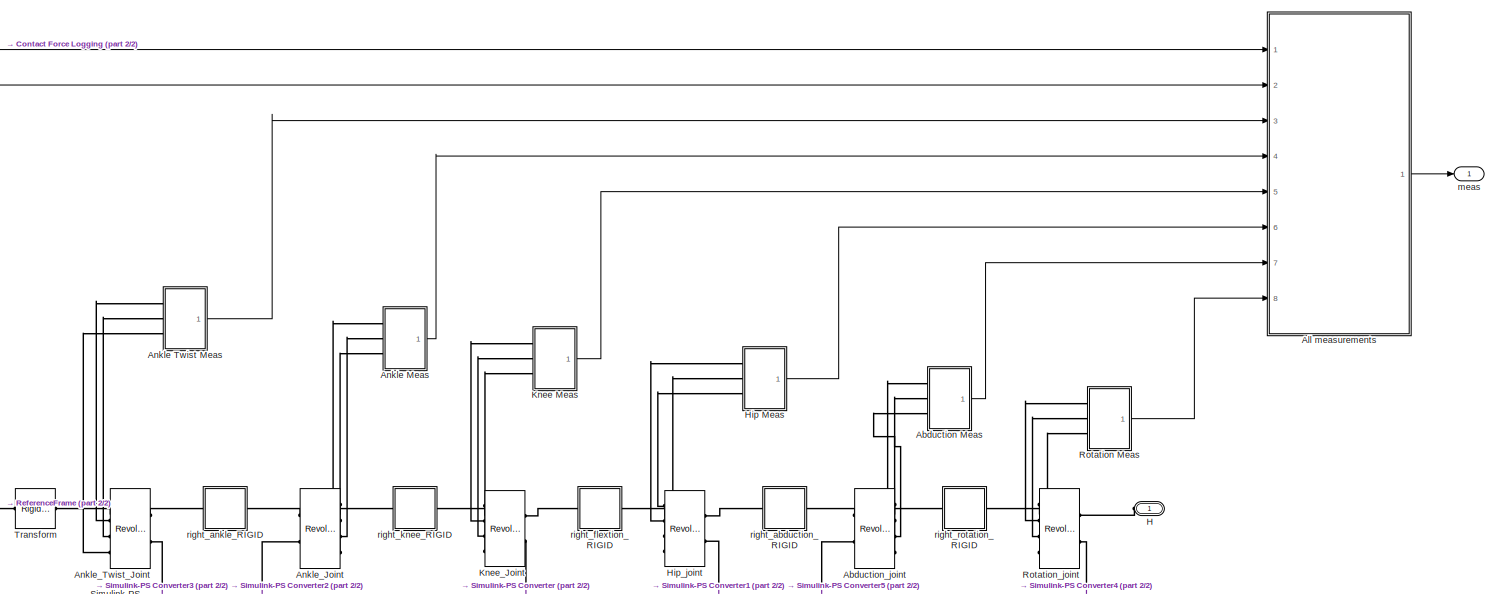
[diagram: Robot/Right_leg - part 1/2, full width, middle band]
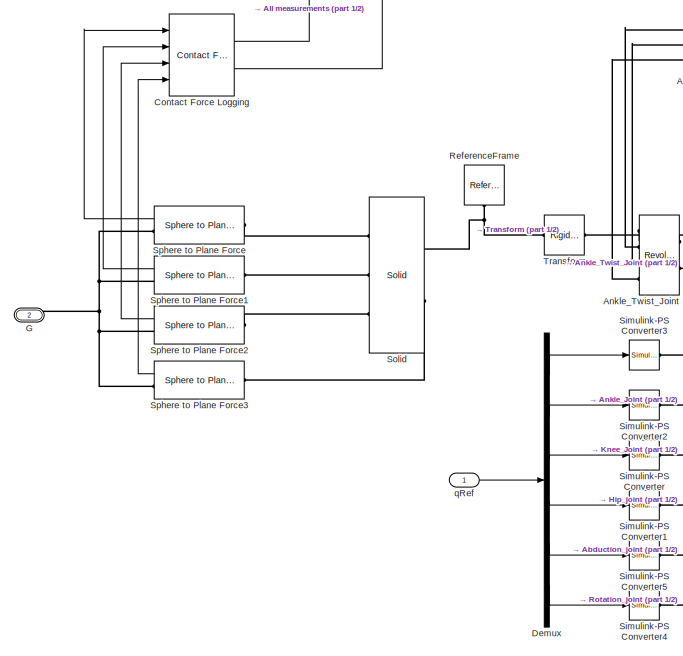
[diagram: Robot/Right_leg - part 2/2, middle left region]
BLOCK [SubSystem] Robot/Right_leg
  Ports = [1, 1, 0, 0, 0, 1, 1]
  RequestExecContextInheritance = off
BLOCK [SubSystem] Robot/Right_leg/Abduction Meas
  Ports = [0, 1, 0, 0, 0, 3]
  RequestExecContextInheritance = off
BLOCK [BusCreator] Robot/Right_leg/Abduction Meas/Bus Creator
  DisplayOption = bar
  InheritFromInputs = on
  Inputs = 3
  Ports = [3, 1]
BLOCK [Reference] Robot/Right_leg/Abduction Meas/PS-Simulink Converter  REF=nesl_utility/PS-Simulink
Converter
  Ports = [0, 1, 0, 0, 0, 1]
  SourceBlock = nesl_utility/PS-Simulink\nConverter
  SourceProductBaseCode = SS
  SourceProductName = Simscape
  SourceType = PS-Simulink\nConverter
BLOCK [Reference] Robot/Right_leg/Abduction Meas/PS-Simulink Converter1  REF=nesl_utility/PS-Simulink
Converter
  Ports = [0, 1, 0, 0, 0, 1]
  SourceBlock = nesl_utility/PS-Simulink\nConverter
  SourceProductBaseCode = SS
  SourceProductName = Simscape
  SourceType = PS-Simulink\nConverter
BLOCK [Reference] Robot/Right_leg/Abduction Meas/PS-Simulink Converter2  REF=nesl_utility/PS-Simulink
Converter
  Ports = [0, 1, 0, 0, 0, 1]
  SourceBlock = nesl_utility/PS-Simulink\nConverter
  SourceProductBaseCode = SS
  SourceProductName = Simscape
  SourceType = PS-Simulink\nConverter
BLOCK [Outport] Robot/Right_leg/Abduction Meas/meas
  IconDisplay = Port number
BLOCK [PMIOPort] Robot/Right_leg/Abduction Meas/q
  Side = Left
BLOCK [PMIOPort] Robot/Right_leg/Abduction Meas/t
  Port = 3
  Side = Left
BLOCK [PMIOPort] Robot/Right_leg/Abduction Meas/w
  Port = 2
  Side = Left
BLOCK [Reference] Robot/Right_leg/Abduction_joint  REF=sm_lib/Joints/Revolute Joint
  Ports = [0, 0, 0, 0, 0, 2, 4]
  SourceBlock = sm_lib/Joints/Revolute Joint
  SourceProductBaseCode = MS
  SourceProductName = Simscape Multibody
  SourceType = Revolute Joint
BLOCK [SubSystem] Robot/Right_leg/All measurements
  Ports = [8, 1]
  RequestExecContextInheritance = off
BLOCK [BusCreator] Robot/Right_leg/All measurements/Bus Creator3
  DisplayOption = bar
  InheritFromInputs = on
  Inputs = 14
  Ports = [14, 1]
BLOCK [Reference] Robot/Right_leg/All measurements/Extract Measurements  REF=walkingRobotUtils/Package 
Measurements/Extract Measurements
  Ports = [1, 2]
  SourceBlock = walkingRobotUtils/Package \nMeasurements/Extract Measurements
  SourceType = SubSystem
BLOCK [Reference] Robot/Right_leg/All measurements/Extract Measurements1  REF=walkingRobotUtils/Package 
Measurements/Extract Measurements
  Ports = [1, 2]
  SourceBlock = walkingRobotUtils/Package \nMeasurements/Extract Measurements
  SourceType = SubSystem
BLOCK [Reference] Robot/Right_leg/All measurements/Extract Measurements2  REF=walkingRobotUtils/Package 
Measurements/Extract Measurements
  Ports = [1, 2]
  SourceBlock = walkingRobotUtils/Package \nMeasurements/Extract Measurements
  SourceType = SubSystem
BLOCK [Reference] Robot/Right_leg/All measurements/Extract Measurements3  REF=walkingRobotUtils/Package 
Measurements/Extract Measurements
  Ports = [1, 2]
  SourceBlock = walkingRobotUtils/Package \nMeasurements/Extract Measurements
  SourceType = SubSystem
BLOCK [Reference] Robot/Right_leg/All measurements/Extract Measurements4  REF=walkingRobotUtils/Package 
Measurements/Extract Measurements
  Ports = [1, 2]
  SourceBlock = walkingRobotUtils/Package \nMeasurements/Extract Measurements
  SourceType = SubSystem
BLOCK [Reference] Robot/Right_leg/All measurements/Extract Measurements5  REF=walkingRobotUtils/Package 
Measurements/Extract Measurements
  Ports = [1, 2]
  SourceBlock = walkingRobotUtils/Package \nMeasurements/Extract Measurements
  SourceType = SubSystem
BLOCK [Inport] Robot/Right_leg/All measurements/Ff
  IconDisplay = Port number
  Port = 2
BLOCK [Inport] Robot/Right_leg/All measurements/Fn
  IconDisplay = Port number
BLOCK [Inport] Robot/Right_leg/All measurements/abduction
  IconDisplay = Port number
  Port = 7
BLOCK [Inport] Robot/Right_leg/All measurements/ankle
  IconDisplay = Port number
  Port = 4
BLOCK [Inport] Robot/Right_leg/All measurements/ankle_twist
  IconDisplay = Port number
  Port = 3
BLOCK [Inport] Robot/Right_leg/All measurements/hip
  IconDisplay = Port number
  Port = 6
BLOCK [Inport] Robot/Right_leg/All measurements/knee
  IconDisplay = Port number
  Port = 5
BLOCK [Outport] Robot/Right_leg/All measurements/meas
  IconDisplay = Port number
BLOCK [Inport] Robot/Right_leg/All measurements/rotation
  IconDisplay = Port number
  Port = 8
BLOCK [SubSystem] Robot/Right_leg/Ankle Meas
  Ports = [0, 1, 0, 0, 0, 3]
  RequestExecContextInheritance = off
BLOCK [BusCreator] Robot/Right_leg/Ankle Meas/Bus Creator
  DisplayOption = bar
  InheritFromInputs = on
  Inputs = 3
  Ports = [3, 1]
BLOCK [Reference] Robot/Right_leg/Ankle Meas/PS-Simulink Converter  REF=nesl_utility/PS-Simulink
Converter
  Ports = [0, 1, 0, 0, 0, 1]
  SourceBlock = nesl_utility/PS-Simulink\nConverter
  SourceProductBaseCode = SS
  SourceProductName = Simscape
  SourceType = PS-Simulink\nConverter
BLOCK [Reference] Robot/Right_leg/Ankle Meas/PS-Simulink Converter1  REF=nesl_utility/PS-Simulink
Converter
  Ports = [0, 1, 0, 0, 0, 1]
  SourceBlock = nesl_utility/PS-Simulink\nConverter
  SourceProductBaseCode = SS
  SourceProductName = Simscape
  SourceType = PS-Simulink\nConverter
BLOCK [Reference] Robot/Right_leg/Ankle Meas/PS-Simulink Converter2  REF=nesl_utility/PS-Simulink
Converter
  Ports = [0, 1, 0, 0, 0, 1]
  SourceBlock = nesl_utility/PS-Simulink\nConverter
  SourceProductBaseCode = SS
  SourceProductName = Simscape
  SourceType = PS-Simulink\nConverter
BLOCK [Outport] Robot/Right_leg/Ankle Meas/meas
  IconDisplay = Port number
BLOCK [PMIOPort] Robot/Right_leg/Ankle Meas/q
  Side = Left
BLOCK [PMIOPort] Robot/Right_leg/Ankle Meas/t
  Port = 3
  Side = Left
BLOCK [PMIOPort] Robot/Right_leg/Ankle Meas/w
  Port = 2
  Side = Left
BLOCK [SubSystem] Robot/Right_leg/Ankle Twist Meas
  Ports = [0, 1, 0, 0, 0, 3]
  RequestExecContextInheritance = off
BLOCK [BusCreator] Robot/Right_leg/Ankle Twist Meas/Bus Creator
  DisplayOption = bar
  InheritFromInputs = on
  Inputs = 3
  Ports = [3, 1]
BLOCK [Reference] Robot/Right_leg/Ankle Twist Meas/PS-Simulink Converter  REF=nesl_utility/PS-Simulink
Converter
  Ports = [0, 1, 0, 0, 0, 1]
  SourceBlock = nesl_utility/PS-Simulink\nConverter
  SourceProductBaseCode = SS
  SourceProductName = Simscape
  SourceType = PS-Simulink\nConverter
BLOCK [Reference] Robot/Right_leg/Ankle Twist Meas/PS-Simulink Converter1  REF=nesl_utility/PS-Simulink
Converter
  Ports = [0, 1, 0, 0, 0, 1]
  SourceBlock = nesl_utility/PS-Simulink\nConverter
  SourceProductBaseCode = SS
  SourceProductName = Simscape
  SourceType = PS-Simulink\nConverter
BLOCK [Reference] Robot/Right_leg/Ankle Twist Meas/PS-Simulink Converter2  REF=nesl_utility/PS-Simulink
Converter
  Ports = [0, 1, 0, 0, 0, 1]
  SourceBlock = nesl_utility/PS-Simulink\nConverter
  SourceProductBaseCode = SS
  SourceProductName = Simscape
  SourceType = PS-Simulink\nConverter
BLOCK [Outport] Robot/Right_leg/Ankle Twist Meas/meas
  IconDisplay = Port number
BLOCK [PMIOPort] Robot/Right_leg/Ankle Twist Meas/q
  Side = Left
BLOCK [PMIOPort] Robot/Right_leg/Ankle Twist Meas/t
  Port = 3
  Side = Left
BLOCK [PMIOPort] Robot/Right_leg/Ankle Twist Meas/w
  Port = 2
  Side = Left
BLOCK [Reference] Robot/Right_leg/Ankle_Joint  REF=sm_lib/Joints/Revolute Joint
  Ports = [0, 0, 0, 0, 0, 2, 4]
  SourceBlock = sm_lib/Joints/Revolute Joint
  SourceProductBaseCode = MS
  SourceProductName = Simscape Multibody
  SourceType = Revolute Joint
BLOCK [Reference] Robot/Right_leg/Ankle_Twist_Joint  REF=sm_lib/Joints/Revolute Joint
  Ports = [0, 0, 0, 0, 0, 2, 4]
  SourceBlock = sm_lib/Joints/Revolute Joint
  SourceProductBaseCode = MS
  SourceProductName = Simscape Multibody
  SourceType = Revolute Joint
BLOCK [Reference] Robot/Right_leg/Contact Force Logging  REF=walkingRobotUtils/Contact Force Logging
  Ports = [4, 2]
  SourceBlock = walkingRobotUtils/Contact Force Logging
  SourceType = SubSystem
BLOCK [Demux] Robot/Right_leg/Demux
  DisplayOption = bar
  Outputs = 6
  Ports = [1, 6]
BLOCK [PMIOPort] Robot/Right_leg/G
  Port = 2
  Side = Right
BLOCK [PMIOPort] Robot/Right_leg/H
  Side = Left
BLOCK [SubSystem] Robot/Right_leg/Hip Meas
  Ports = [0, 1, 0, 0, 0, 3]
  RequestExecContextInheritance = off
BLOCK [BusCreator] Robot/Right_leg/Hip Meas/Bus Creator
  DisplayOption = bar
  InheritFromInputs = on
  Inputs = 3
  Ports = [3, 1]
BLOCK [Reference] Robot/Right_leg/Hip Meas/PS-Simulink Converter  REF=nesl_utility/PS-Simulink
Converter
  Ports = [0, 1, 0, 0, 0, 1]
  SourceBlock = nesl_utility/PS-Simulink\nConverter
  SourceProductBaseCode = SS
  SourceProductName = Simscape
  SourceType = PS-Simulink\nConverter
BLOCK [Reference] Robot/Right_leg/Hip Meas/PS-Simulink Converter1  REF=nesl_utility/PS-Simulink
Converter
  Ports = [0, 1, 0, 0, 0, 1]
  SourceBlock = nesl_utility/PS-Simulink\nConverter
  SourceProductBaseCode = SS
  SourceProductName = Simscape
  SourceType = PS-Simulink\nConverter
BLOCK [Reference] Robot/Right_leg/Hip Meas/PS-Simulink Converter2  REF=nesl_utility/PS-Simulink
Converter
  Ports = [0, 1, 0, 0, 0, 1]
  SourceBlock = nesl_utility/PS-Simulink\nConverter
  SourceProductBaseCode = SS
  SourceProductName = Simscape
  SourceType = PS-Simulink\nConverter
BLOCK [Outport] Robot/Right_leg/Hip Meas/meas
  IconDisplay = Port number
BLOCK [PMIOPort] Robot/Right_leg/Hip Meas/q
  Side = Left
BLOCK [PMIOPort] Robot/Right_leg/Hip Meas/t
  Port = 3
  Side = Left
BLOCK [PMIOPort] Robot/Right_leg/Hip Meas/w
  Port = 2
  Side = Left
BLOCK [Reference] Robot/Right_leg/Hip_joint  REF=sm_lib/Joints/Revolute Joint
  Ports = [0, 0, 0, 0, 0, 2, 4]
  SourceBlock = sm_lib/Joints/Revolute Joint
  SourceProductBaseCode = MS
  SourceProductName = Simscape Multibody
  SourceType = Revolute Joint
BLOCK [SubSystem] Robot/Right_leg/Knee Meas
  Ports = [0, 1, 0, 0, 0, 3]
  RequestExecContextInheritance = off
BLOCK [BusCreator] Robot/Right_leg/Knee Meas/Bus Creator
  DisplayOption = bar
  InheritFromInputs = on
  Inputs = 3
  Ports = [3, 1]
BLOCK [Reference] Robot/Right_leg/Knee Meas/PS-Simulink Converter  REF=nesl_utility/PS-Simulink
Converter
  Ports = [0, 1, 0, 0, 0, 1]
  SourceBlock = nesl_utility/PS-Simulink\nConverter
  SourceProductBaseCode = SS
  SourceProductName = Simscape
  SourceType = PS-Simulink\nConverter
BLOCK [Reference] Robot/Right_leg/Knee Meas/PS-Simulink Converter1  REF=nesl_utility/PS-Simulink
Converter
  Ports = [0, 1, 0, 0, 0, 1]
  SourceBlock = nesl_utility/PS-Simulink\nConverter
  SourceProductBaseCode = SS
  SourceProductName = Simscape
  SourceType = PS-Simulink\nConverter
BLOCK [Reference] Robot/Right_leg/Knee Meas/PS-Simulink Converter2  REF=nesl_utility/PS-Simulink
Converter
  Ports = [0, 1, 0, 0, 0, 1]
  SourceBlock = nesl_utility/PS-Simulink\nConverter
  SourceProductBaseCode = SS
  SourceProductName = Simscape
  SourceType = PS-Simulink\nConverter
BLOCK [Outport] Robot/Right_leg/Knee Meas/meas
  IconDisplay = Port number
BLOCK [PMIOPort] Robot/Right_leg/Knee Meas/q
  Side = Left
BLOCK [PMIOPort] Robot/Right_leg/Knee Meas/t
  Port = 3
  Side = Left
BLOCK [PMIOPort] Robot/Right_leg/Knee Meas/w
  Port = 2
  Side = Left
BLOCK [Reference] Robot/Right_leg/Knee_Joint  REF=sm_lib/Joints/Revolute Joint
  Ports = [0, 0, 0, 0, 0, 2, 4]
  SourceBlock = sm_lib/Joints/Revolute Joint
  SourceProductBaseCode = MS
  SourceProductName = Simscape Multibody
  SourceType = Revolute Joint
BLOCK [Reference] Robot/Right_leg/ReferenceFrame  REF=sm_lib/Frames and
Transforms/Reference
Frame
  Ports = [0, 0, 0, 0, 0, 0, 1]
  SourceBlock = sm_lib/Frames and\nTransforms/Reference\nFrame
  SourceProductBaseCode = MS
  SourceProductName = Simscape Multibody
  SourceType = Reference\nFrame
BLOCK [SubSystem] Robot/Right_leg/Rotation Meas
  Ports = [0, 1, 0, 0, 0, 3]
  RequestExecContextInheritance = off
BLOCK [BusCreator] Robot/Right_leg/Rotation Meas/Bus Creator
  DisplayOption = bar
  InheritFromInputs = on
  Inputs = 3
  Ports = [3, 1]
BLOCK [Reference] Robot/Right_leg/Rotation Meas/PS-Simulink Converter  REF=nesl_utility/PS-Simulink
Converter
  Ports = [0, 1, 0, 0, 0, 1]
  SourceBlock = nesl_utility/PS-Simulink\nConverter
  SourceProductBaseCode = SS
  SourceProductName = Simscape
  SourceType = PS-Simulink\nConverter
BLOCK [Reference] Robot/Right_leg/Rotation Meas/PS-Simulink Converter1  REF=nesl_utility/PS-Simulink
Converter
  Ports = [0, 1, 0, 0, 0, 1]
  SourceBlock = nesl_utility/PS-Simulink\nConverter
  SourceProductBaseCode = SS
  SourceProductName = Simscape
  SourceType = PS-Simulink\nConverter
BLOCK [Reference] Robot/Right_leg/Rotation Meas/PS-Simulink Converter2  REF=nesl_utility/PS-Simulink
Converter
  Ports = [0, 1, 0, 0, 0, 1]
  SourceBlock = nesl_utility/PS-Simulink\nConverter
  SourceProductBaseCode = SS
  SourceProductName = Simscape
  SourceType = PS-Simulink\nConverter
BLOCK [Outport] Robot/Right_leg/Rotation Meas/meas
  IconDisplay = Port number
BLOCK [PMIOPort] Robot/Right_leg/Rotation Meas/q
  Side = Left
BLOCK [PMIOPort] Robot/Right_leg/Rotation Meas/t
  Port = 3
  Side = Left
BLOCK [PMIOPort] Robot/Right_leg/Rotation Meas/w
  Port = 2
  Side = Left
BLOCK [Reference] Robot/Right_leg/Rotation_joint  REF=sm_lib/Joints/Revolute Joint
  Ports = [0, 0, 0, 0, 0, 2, 4]
  SourceBlock = sm_lib/Joints/Revolute Joint
  SourceProductBaseCode = MS
  SourceProductName = Simscape Multibody
  SourceType = Revolute Joint
BLOCK [Reference] Robot/Right_leg/Simulink-PS Converter  REF=nesl_utility/Simulink-PS
Converter
  Ports = [1, 0, 0, 0, 0, 0, 1]
  SourceBlock = nesl_utility/Simulink-PS\nConverter
  SourceProductBaseCode = SS
  SourceProductName = Simscape
  SourceType = Simulink-PS\nConverter
BLOCK [Reference] Robot/Right_leg/Simulink-PS Converter1  REF=nesl_utility/Simulink-PS
Converter
  Ports = [1, 0, 0, 0, 0, 0, 1]
  SourceBlock = nesl_utility/Simulink-PS\nConverter
  SourceProductBaseCode = SS
  SourceProductName = Simscape
  SourceType = Simulink-PS\nConverter
BLOCK [Reference] Robot/Right_leg/Simulink-PS Converter2  REF=nesl_utility/Simulink-PS
Converter
  Ports = [1, 0, 0, 0, 0, 0, 1]
  SourceBlock = nesl_utility/Simulink-PS\nConverter
  SourceProductBaseCode = SS
  SourceProductName = Simscape
  SourceType = Simulink-PS\nConverter
BLOCK [Reference] Robot/Right_leg/Simulink-PS Converter3  REF=nesl_utility/Simulink-PS
Converter
  Ports = [1, 0, 0, 0, 0, 0, 1]
  SourceBlock = nesl_utility/Simulink-PS\nConverter
  SourceProductBaseCode = SS
  SourceProductName = Simscape
  SourceType = Simulink-PS\nConverter
BLOCK [Reference] Robot/Right_leg/Simulink-PS Converter4  REF=nesl_utility/Simulink-PS
Converter
  Ports = [1, 0, 0, 0, 0, 0, 1]
  SourceBlock = nesl_utility/Simulink-PS\nConverter
  SourceProductBaseCode = SS
  SourceProductName = Simscape
  SourceType = Simulink-PS\nConverter
BLOCK [Reference] Robot/Right_leg/Simulink-PS Converter5  REF=nesl_utility/Simulink-PS
Converter
  Ports = [1, 0, 0, 0, 0, 0, 1]
  SourceBlock = nesl_utility/Simulink-PS\nConverter
  SourceProductBaseCode = SS
  SourceProductName = Simscape
  SourceType = Simulink-PS\nConverter
BLOCK [Reference] Robot/Right_leg/Solid  REF=sm_lib/Body Elements/Solid
  Ports = [0, 0, 0, 0, 0, 3, 2]
  SourceBlock = sm_lib/Body Elements/Solid
  SourceProductBaseCode = MS
  SourceProductName = Simscape Multibody
  SourceType = Solid
BLOCK [Reference] Robot/Right_leg/Sphere to Plane Force  REF=Contact_Forces_Lib/3D/Sphere to Plane Force
  Ports = [0, 1, 0, 0, 0, 1, 1]
  SourceBlock = Contact_Forces_Lib/3D/Sphere to Plane Force
  SourceProductName = Simscape Multibody Contact Forces Library
  SourceType = Sphere to Plane Force
BLOCK [Reference] Robot/Right_leg/Sphere to Plane Force1  REF=Contact_Forces_Lib/3D/Sphere to Plane Force
  Ports = [0, 1, 0, 0, 0, 1, 1]
  SourceBlock = Contact_Forces_Lib/3D/Sphere to Plane Force
  SourceProductName = Simscape Multibody Contact Forces Library
  SourceType = Sphere to Plane Force
BLOCK [Reference] Robot/Right_leg/Sphere to Plane Force2  REF=Contact_Forces_Lib/3D/Sphere to Plane Force
  Ports = [0, 1, 0, 0, 0, 1, 1]
  SourceBlock = Contact_Forces_Lib/3D/Sphere to Plane Force
  SourceProductName = Simscape Multibody Contact Forces Library
  SourceType = Sphere to Plane Force
BLOCK [Reference] Robot/Right_leg/Sphere to Plane Force3  REF=Contact_Forces_Lib/3D/Sphere to Plane Force
  Ports = [0, 1, 0, 0, 0, 1, 1]
  SourceBlock = Contact_Forces_Lib/3D/Sphere to Plane Force
  SourceProductName = Simscape Multibody Contact Forces Library
  SourceType = Sphere to Plane Force
BLOCK [Reference] Robot/Right_leg/Transform  REF=sm_lib/Frames and
Transforms/Rigid
Transform
  Ports = [0, 0, 0, 0, 0, 1, 1]
  SourceBlock = sm_lib/Frames and\nTransforms/Rigid\nTransform
  SourceProductBaseCode = MS
  SourceProductName = Simscape Multibody
  SourceType = Rigid\nTransform
BLOCK [Outport] Robot/Right_leg/meas
  IconDisplay = Port number
BLOCK [Inport] Robot/Right_leg/qRef
  IconDisplay = Port number
BLOCK [SubSystem] Robot/Right_leg/right_abduction_RIGID
  Ports = [0, 0, 0, 0, 0, 1, 1]
  RequestExecContextInheritance = off
BLOCK [PMIOPort] Robot/Right_leg/right_abduction_RIGID/F
  Side = Left
BLOCK [PMIOPort] Robot/Right_leg/right_abduction_RIGID/F1
  Port = 2
  Side = Right
BLOCK [Reference] Robot/Right_leg/right_abduction_RIGID/ReferenceFrame  REF=sm_lib/Frames and
Transforms/Reference
Frame
  Ports = [0, 0, 0, 0, 0, 0, 1]
  SourceBlock = sm_lib/Frames and\nTransforms/Reference\nFrame
  SourceProductBaseCode = MS
  SourceProductName = Simscape Multibody
  SourceType = Reference\nFrame
BLOCK [Reference] Robot/Right_leg/right_abduction_RIGID/Solid  REF=sm_lib/Body Elements/Solid
  Ports = [0, 0, 0, 0, 0, 0, 1]
  SourceBlock = sm_lib/Body Elements/Solid
  SourceProductBaseCode = MS
  SourceProductName = Simscape Multibody
  SourceType = Solid
BLOCK [Reference] Robot/Right_leg/right_abduction_RIGID/Transform  REF=sm_lib/Frames and
Transforms/Rigid
Transform
  Ports = [0, 0, 0, 0, 0, 1, 1]
  SourceBlock = sm_lib/Frames and\nTransforms/Rigid\nTransform
  SourceProductBaseCode = MS
  SourceProductName = Simscape Multibody
  SourceType = Rigid\nTransform
BLOCK [Reference] Robot/Right_leg/right_abduction_RIGID/Transform1  REF=sm_lib/Frames and
Transforms/Rigid
Transform
  Ports = [0, 0, 0, 0, 0, 1, 1]
  SourceBlock = sm_lib/Frames and\nTransforms/Rigid\nTransform
  SourceProductBaseCode = MS
  SourceProductName = Simscape Multibody
  SourceType = Rigid\nTransform
BLOCK [SubSystem] Robot/Right_leg/right_ankle_RIGID
  Ports = [0, 0, 0, 0, 0, 1, 1]
  RequestExecContextInheritance = off
BLOCK [PMIOPort] Robot/Right_leg/right_ankle_RIGID/F
  Port = 2
  Side = Right
BLOCK [PMIOPort] Robot/Right_leg/right_ankle_RIGID/F1
  Side = Left
BLOCK [Reference] Robot/Right_leg/right_ankle_RIGID/ReferenceFrame  REF=sm_lib/Frames and
Transforms/Reference
Frame
  Ports = [0, 0, 0, 0, 0, 0, 1]
  SourceBlock = sm_lib/Frames and\nTransforms/Reference\nFrame
  SourceProductBaseCode = MS
  SourceProductName = Simscape Multibody
  SourceType = Reference\nFrame
BLOCK [Reference] Robot/Right_leg/right_ankle_RIGID/Solid  REF=sm_lib/Body Elements/Solid
  Ports = [0, 0, 0, 0, 0, 0, 1]
  SourceBlock = sm_lib/Body Elements/Solid
  SourceProductBaseCode = MS
  SourceProductName = Simscape Multibody
  SourceType = Solid
BLOCK [Reference] Robot/Right_leg/right_ankle_RIGID/Transform  REF=sm_lib/Frames and
Transforms/Rigid
Transform
  Ports = [0, 0, 0, 0, 0, 1, 1]
  SourceBlock = sm_lib/Frames and\nTransforms/Rigid\nTransform
  SourceProductBaseCode = MS
  SourceProductName = Simscape Multibody
  SourceType = Rigid\nTransform
BLOCK [Reference] Robot/Right_leg/right_ankle_RIGID/Transform1  REF=sm_lib/Frames and
Transforms/Rigid
Transform
  Ports = [0, 0, 0, 0, 0, 1, 1]
  SourceBlock = sm_lib/Frames and\nTransforms/Rigid\nTransform
  SourceProductBaseCode = MS
  SourceProductName = Simscape Multibody
  SourceType = Rigid\nTransform
BLOCK [SubSystem] Robot/Right_leg/right_flextion_RIGID
  Ports = [0, 0, 0, 0, 0, 1, 1]
  RequestExecContextInheritance = off
BLOCK [PMIOPort] Robot/Right_leg/right_flextion_RIGID/F
  Port = 2
  Side = Right
BLOCK [PMIOPort] Robot/Right_leg/right_flextion_RIGID/F1
  Side = Left
BLOCK [Reference] Robot/Right_leg/right_flextion_RIGID/ReferenceFrame  REF=sm_lib/Frames and
Transforms/Reference
Frame
  Ports = [0, 0, 0, 0, 0, 0, 1]
  SourceBlock = sm_lib/Frames and\nTransforms/Reference\nFrame
  SourceProductBaseCode = MS
  SourceProductName = Simscape Multibody
  SourceType = Reference\nFrame
BLOCK [Reference] Robot/Right_leg/right_flextion_RIGID/Solid  REF=sm_lib/Body Elements/Solid
  Ports = [0, 0, 0, 0, 0, 0, 1]
  SourceBlock = sm_lib/Body Elements/Solid
  SourceProductBaseCode = MS
  SourceProductName = Simscape Multibody
  SourceType = Solid
BLOCK [Reference] Robot/Right_leg/right_flextion_RIGID/Transform  REF=sm_lib/Frames and
Transforms/Rigid
Transform
  Ports = [0, 0, 0, 0, 0, 1, 1]
  SourceBlock = sm_lib/Frames and\nTransforms/Rigid\nTransform
  SourceProductBaseCode = MS
  SourceProductName = Simscape Multibody
  SourceType = Rigid\nTransform
BLOCK [Reference] Robot/Right_leg/right_flextion_RIGID/Transform1  REF=sm_lib/Frames and
Transforms/Rigid
Transform
  Ports = [0, 0, 0, 0, 0, 1, 1]
  SourceBlock = sm_lib/Frames and\nTransforms/Rigid\nTransform
  SourceProductBaseCode = MS
  SourceProductName = Simscape Multibody
  SourceType = Rigid\nTransform
BLOCK [SubSystem] Robot/Right_leg/right_knee_RIGID
  Ports = [0, 0, 0, 0, 0, 1, 1]
  RequestExecContextInheritance = off
BLOCK [PMIOPort] Robot/Right_leg/right_knee_RIGID/F
  Port = 2
  Side = Right
BLOCK [PMIOPort] Robot/Right_leg/right_knee_RIGID/F1
  Side = Left
BLOCK [Reference] Robot/Right_leg/right_knee_RIGID/ReferenceFrame  REF=sm_lib/Frames and
Transforms/Reference
Frame
  Ports = [0, 0, 0, 0, 0, 0, 1]
  SourceBlock = sm_lib/Frames and\nTransforms/Reference\nFrame
  SourceProductBaseCode = MS
  SourceProductName = Simscape Multibody
  SourceType = Reference\nFrame
BLOCK [Reference] Robot/Right_leg/right_knee_RIGID/Solid  REF=sm_lib/Body Elements/Solid
  Ports = [0, 0, 0, 0, 0, 0, 1]
  SourceBlock = sm_lib/Body Elements/Solid
  SourceProductBaseCode = MS
  SourceProductName = Simscape Multibody
  SourceType = Solid
BLOCK [Reference] Robot/Right_leg/right_knee_RIGID/Transform  REF=sm_lib/Frames and
Transforms/Rigid
Transform
  Ports = [0, 0, 0, 0, 0, 1, 1]
  SourceBlock = sm_lib/Frames and\nTransforms/Rigid\nTransform
  SourceProductBaseCode = MS
  SourceProductName = Simscape Multibody
  SourceType = Rigid\nTransform
BLOCK [Reference] Robot/Right_leg/right_knee_RIGID/Transform1  REF=sm_lib/Frames and
Transforms/Rigid
Transform
  Ports = [0, 0, 0, 0, 0, 1, 1]
  SourceBlock = sm_lib/Frames and\nTransforms/Rigid\nTransform
  SourceProductBaseCode = MS
  SourceProductName = Simscape Multibody
  SourceType = Rigid\nTransform
BLOCK [SubSystem] Robot/Right_leg/right_rotation_RIGID
  Ports = [0, 0, 0, 0, 0, 1, 1]
  RequestExecContextInheritance = off
BLOCK [PMIOPort] Robot/Right_leg/right_rotation_RIGID/F
  Side = Left
BLOCK [PMIOPort] Robot/Right_leg/right_rotation_RIGID/F1
  Port = 2
  Side = Right
BLOCK [Reference] Robot/Right_leg/right_rotation_RIGID/ReferenceFrame  REF=sm_lib/Frames and
Transforms/Reference
Frame
  Ports = [0, 0, 0, 0, 0, 0, 1]
  SourceBlock = sm_lib/Frames and\nTransforms/Reference\nFrame
  SourceProductBaseCode = MS
  SourceProductName = Simscape Multibody
  SourceType = Reference\nFrame
BLOCK [Reference] Robot/Right_leg/right_rotation_RIGID/Solid  REF=sm_lib/Body Elements/Solid
  Ports = [0, 0, 0, 0, 0, 0, 1]
  SourceBlock = sm_lib/Body Elements/Solid
  SourceProductBaseCode = MS
  SourceProductName = Simscape Multibody
  SourceType = Solid
BLOCK [Reference] Robot/Right_leg/right_rotation_RIGID/Transform  REF=sm_lib/Frames and
Transforms/Rigid
Transform
  Ports = [0, 0, 0, 0, 0, 1, 1]
  SourceBlock = sm_lib/Frames and\nTransforms/Rigid\nTransform
  SourceProductBaseCode = MS
  SourceProductName = Simscape Multibody
  SourceType = Rigid\nTransform
BLOCK [Reference] Robot/Right_leg/right_rotation_RIGID/Transform1  REF=sm_lib/Frames and
Transforms/Rigid
Transform
  Ports = [0, 0, 0, 0, 0, 1, 1]
  SourceBlock = sm_lib/Frames and\nTransforms/Rigid\nTransform
  SourceProductBaseCode = MS
  SourceProductName = Simscape Multibody
  SourceType = Rigid\nTransform
BLOCK [Scope] Robot/Scope
  Floating = off
  NumInputPorts = 1
  Ports = [1]
  ScopeSpecificationString = Simulink.scopes.TimeScopeBlockCfg('CurrentConfiguration', extmgr.ConfigurationSet(extmgr.Configuration('Core','General UI',true),extmgr.Configuration('Core','Source UI',true),extmgr.Configuration('Sources','WiredSimulink',true,'DataLoggingVariableName','ScopeData1'),extmgr.Configuration('Visuals','Time Domain',true),extmgr.Configuration('Tools','Plot Navigation',true),extmgr.Configuration('Tools',...<+40ch>
BLOCK [Reference] Robot/Scope   REF=slrtlib/Displays and
Logging/Scope 
  Ports = [1]
  SourceBlock = slrtlib/Displays and\nLogging/Scope
  SourceProductBaseCode = XP
  SourceProductName = Simulink Real-Time
  SourceType = xpcscopeblock
BLOCK [Reference] Robot/Scope 3  REF=slrtlib/Displays and
Logging/Scope 
  Commented = on
  Ports = [1]
  SourceBlock = slrtlib/Displays and\nLogging/Scope
  SourceProductBaseCode = XP
  SourceProductName = Simulink Real-Time
  SourceType = xpcscopeblock
BLOCK [Reference] Robot/Scope 4  REF=slrtlib/Displays and
Logging/Scope 
  Commented = on
  Ports = [1]
  SourceBlock = slrtlib/Displays and\nLogging/Scope
  SourceProductBaseCode = XP
  SourceProductName = Simulink Real-Time
  SourceType = xpcscopeblock
BLOCK [Reference] Robot/Solid  REF=sm_lib/Body Elements/Solid
  Ports = [0, 0, 0, 0, 0, 0, 1]
  SourceBlock = sm_lib/Body Elements/Solid
  SourceProductBaseCode = MS
  SourceProductName = Simscape Multibody
  SourceType = Solid
BLOCK [SubSystem] Robot/Subsystem
  Ports = [2, 2]
  RequestExecContextInheritance = off
BLOCK [Sum] Robot/Subsystem/Add1
  InputSameDT = off
  Inputs = +++
  OutDataTypeStr = Inherit: Inherit via internal rule
  Ports = [3, 1]
  SaturateOnIntegerOverflow = off
BLOCK [Sum] Robot/Subsystem/Add2
  InputSameDT = off
  Inputs = +++
  OutDataTypeStr = Inherit: Inherit via internal rule
  Ports = [3, 1]
  SaturateOnIntegerOverflow = off
BLOCK [Sum] Robot/Subsystem/Add3
  InputSameDT = off
  Inputs = +++
  OutDataTypeStr = Inherit: Inherit via internal rule
  Ports = [3, 1]
  SaturateOnIntegerOverflow = off
BLOCK [Sum] Robot/Subsystem/Add4
  InputSameDT = off
  Inputs = +++
  OutDataTypeStr = Inherit: Inherit via internal rule
  Ports = [3, 1]
  SaturateOnIntegerOverflow = off
BLOCK [Sum] Robot/Subsystem/Add5
  InputSameDT = off
  Inputs = +++
  OutDataTypeStr = Inherit: Inherit via internal rule
  Ports = [3, 1]
  SaturateOnIntegerOverflow = off
BLOCK [Sum] Robot/Subsystem/Add6
  InputSameDT = off
  Inputs = +++
  OutDataTypeStr = Inherit: Inherit via internal rule
  Ports = [3, 1]
  SaturateOnIntegerOverflow = off
BLOCK [Demux] Robot/Subsystem/Demux1
  DisplayOption = bar
  Outputs = 6
  Ports = [1, 6]
BLOCK [Demux] Robot/Subsystem/Demux2
  DisplayOption = bar
  Outputs = 6
  Ports = [1, 6]
BLOCK [Reference] Robot/Subsystem/Left_Abduction_Motion  REF=simulink/Sources/Repeating
Sequence
  Ports = [0, 1]
  SourceBlock = simulink/Sources/Repeating\nSequence
  SourceProductBaseCode = SL
  SourceProductName = Simulink
  SourceType = Repeating table
BLOCK [Reference] Robot/Subsystem/Left_Ankle Motion  REF=simulink/Sources/Repeating
Sequence
  Ports = [0, 1]
  SourceBlock = simulink/Sources/Repeating\nSequence
  SourceProductBaseCode = SL
  SourceProductName = Simulink
  SourceType = Repeating table
BLOCK [Reference] Robot/Subsystem/Left_Ankle_Twist_Motion  REF=simulink/Sources/Repeating
Sequence
  Ports = [0, 1]
  SourceBlock = simulink/Sources/Repeating\nSequence
  SourceProductBaseCode = SL
  SourceProductName = Simulink
  SourceType = Repeating table
BLOCK [Reference] Robot/Subsystem/Left_Hip_Motion  REF=simulink/Sources/Repeating
Sequence
  Ports = [0, 1]
  SourceBlock = simulink/Sources/Repeating\nSequence
  SourceProductBaseCode = SL
  SourceProductName = Simulink
  SourceType = Repeating table
BLOCK [Reference] Robot/Subsystem/Left_Knee_Motion  REF=simulink/Sources/Repeating
Sequence
  Ports = [0, 1]
  SourceBlock = simulink/Sources/Repeating\nSequence
  SourceProductBaseCode = SL
  SourceProductName = Simulink
  SourceType = Repeating table
BLOCK [Reference] Robot/Subsystem/Left_Rotation_Motion  REF=simulink/Sources/Repeating
Sequence
  Ports = [0, 1]
  SourceBlock = simulink/Sources/Repeating\nSequence
  SourceProductBaseCode = SL
  SourceProductName = Simulink
  SourceType = Repeating table
BLOCK [Outport] Robot/Subsystem/Left_leg
  IconDisplay = Port number
  Port = 2
BLOCK [Mux] Robot/Subsystem/Mux
  DisplayOption = bar
  Inputs = 6
  Ports = [6, 1]
BLOCK [Mux] Robot/Subsystem/Mux1
  DisplayOption = bar
  Inputs = 6
  Ports = [6, 1]
BLOCK [Reference] Robot/Subsystem/Right_Abduction_Motion  REF=simulink/Sources/Repeating
Sequence
  Ports = [0, 1]
  SourceBlock = simulink/Sources/Repeating\nSequence
  SourceProductBaseCode = SL
  SourceProductName = Simulink
  SourceType = Repeating table
BLOCK [Reference] Robot/Subsystem/Right_Ankle_Motion  REF=simulink/Sources/Repeating
Sequence
  Ports = [0, 1]
  SourceBlock = simulink/Sources/Repeating\nSequence
  SourceProductBaseCode = SL
  SourceProductName = Simulink
  SourceType = Repeating table
BLOCK [Reference] Robot/Subsystem/Right_Ankle_Twist_Motion  REF=simulink/Sources/Repeating
Sequence
  Ports = [0, 1]
  SourceBlock = simulink/Sources/Repeating\nSequence
  SourceProductBaseCode = SL
  SourceProductName = Simulink
  SourceType = Repeating table
BLOCK [Reference] Robot/Subsystem/Right_Hip_Motion  REF=simulink/Sources/Repeating
Sequence
  Ports = [0, 1]
  SourceBlock = simulink/Sources/Repeating\nSequence
  SourceProductBaseCode = SL
  SourceProductName = Simulink
  SourceType = Repeating table
BLOCK [Reference] Robot/Subsystem/Right_Knee_Motion  REF=simulink/Sources/Repeating
Sequence
  Ports = [0, 1]
  SourceBlock = simulink/Sources/Repeating\nSequence
  SourceProductBaseCode = SL
  SourceProductName = Simulink
  SourceType = Repeating table
BLOCK [Reference] Robot/Subsystem/Right_Rotation_Motion  REF=simulink/Sources/Repeating
Sequence
  Ports = [0, 1]
  SourceBlock = simulink/Sources/Repeating\nSequence
  SourceProductBaseCode = SL
  SourceProductName = Simulink
  SourceType = Repeating table
BLOCK [Outport] Robot/Subsystem/Right_leg 
  IconDisplay = Port number
BLOCK [Inport] Robot/Subsystem/left_error
  IconDisplay = Port number
  Port = 2
BLOCK [Inport] Robot/Subsystem/right_error
  IconDisplay = Port number
BLOCK [SubSystem] Robot/Subsystem1
  Ports = [1, 1]
  RequestExecContextInheritance = off
BLOCK [Sum] Robot/Subsystem1/Add
  InputSameDT = off
  OutDataTypeStr = Inherit: Inherit via internal rule
  Ports = [2, 1]
  SaturateOnIntegerOverflow = off
BLOCK [Constant] Robot/Subsystem1/Constant
  Value = 2036
BLOCK [DataTypeConversion] Robot/Subsystem1/Data Type Conversion
  OutDataTypeStr = uint32
  RndMeth = Floor
  SaturateOnIntegerOverflow = off
BLOCK [Gain] Robot/Subsystem1/Gain
  Gain = 11.2
  OutDataTypeStr = Inherit: Inherit via internal rule
  ParamDataTypeStr = Inherit: Inherit via internal rule
  SaturateOnIntegerOverflow = off
BLOCK [Inport] Robot/Subsystem1/In1
  IconDisplay = Port number
BLOCK [Outport] Robot/Subsystem1/Out1
  IconDisplay = Port number
BLOCK [SubSystem] Robot/Subsystem10
  Ports = [1, 1]
  RequestExecContextInheritance = off
BLOCK [Sum] Robot/Subsystem10/Add
  InputSameDT = off
  OutDataTypeStr = Inherit: Inherit via internal rule
  Ports = [2, 1]
  SaturateOnIntegerOverflow = off
BLOCK [Constant] Robot/Subsystem10/Constant
  Value = 2036
BLOCK [DataTypeConversion] Robot/Subsystem10/Data Type Conversion
  OutDataTypeStr = uint32
  RndMeth = Floor
  SaturateOnIntegerOverflow = off
BLOCK [Gain] Robot/Subsystem10/Gain
  Gain = 11.2
  OutDataTypeStr = Inherit: Inherit via internal rule
  ParamDataTypeStr = Inherit: Inherit via internal rule
  SaturateOnIntegerOverflow = off
BLOCK [Inport] Robot/Subsystem10/In1
  IconDisplay = Port number
BLOCK [Outport] Robot/Subsystem10/Out1
  IconDisplay = Port number
BLOCK [SubSystem] Robot/Subsystem11
  Ports = [1, 1]
  RequestExecContextInheritance = off
BLOCK [Sum] Robot/Subsystem11/Add
  InputSameDT = off
  OutDataTypeStr = Inherit: Inherit via internal rule
  Ports = [2, 1]
  SaturateOnIntegerOverflow = off
BLOCK [Constant] Robot/Subsystem11/Constant
  Value = 2036
BLOCK [DataTypeConversion] Robot/Subsystem11/Data Type Conversion
  OutDataTypeStr = uint32
  RndMeth = Floor
  SaturateOnIntegerOverflow = off
BLOCK [Gain] Robot/Subsystem11/Gain
  Gain = 11.2
  OutDataTypeStr = Inherit: Inherit via internal rule
  ParamDataTypeStr = Inherit: Inherit via internal rule
  SaturateOnIntegerOverflow = off
BLOCK [Inport] Robot/Subsystem11/In1
  IconDisplay = Port number
BLOCK [Outport] Robot/Subsystem11/Out1
  IconDisplay = Port number
BLOCK [SubSystem] Robot/Subsystem12
  Ports = [1, 1]
  RequestExecContextInheritance = off
BLOCK [Sum] Robot/Subsystem12/Add
  InputSameDT = off
  OutDataTypeStr = Inherit: Inherit via internal rule
  Ports = [2, 1]
  SaturateOnIntegerOverflow = off
BLOCK [Constant] Robot/Subsystem12/Constant
  Value = 2036
BLOCK [DataTypeConversion] Robot/Subsystem12/Data Type Conversion
  OutDataTypeStr = uint32
  RndMeth = Floor
  SaturateOnIntegerOverflow = off
BLOCK [Gain] Robot/Subsystem12/Gain
  Gain = 11.2
  OutDataTypeStr = Inherit: Inherit via internal rule
  ParamDataTypeStr = Inherit: Inherit via internal rule
  SaturateOnIntegerOverflow = off
BLOCK [Inport] Robot/Subsystem12/In1
  IconDisplay = Port number
BLOCK [Outport] Robot/Subsystem12/Out1
  IconDisplay = Port number
BLOCK [SubSystem] Robot/Subsystem2
  Ports = [1, 1]
  RequestExecContextInheritance = off
BLOCK [Sum] Robot/Subsystem2/Add
  InputSameDT = off
  OutDataTypeStr = Inherit: Inherit via internal rule
  Ports = [2, 1]
  SaturateOnIntegerOverflow = off
BLOCK [Constant] Robot/Subsystem2/Constant
  Value = 2036
BLOCK [DataTypeConversion] Robot/Subsystem2/Data Type Conversion
  OutDataTypeStr = uint32
  RndMeth = Floor
  SaturateOnIntegerOverflow = off
BLOCK [Gain] Robot/Subsystem2/Gain
  Gain = 11.2
  OutDataTypeStr = Inherit: Inherit via internal rule
  ParamDataTypeStr = Inherit: Inherit via internal rule
  SaturateOnIntegerOverflow = off
BLOCK [Inport] Robot/Subsystem2/In1
  IconDisplay = Port number
BLOCK [Outport] Robot/Subsystem2/Out1
  IconDisplay = Port number
BLOCK [SubSystem] Robot/Subsystem3
  Ports = [1, 1]
  RequestExecContextInheritance = off
BLOCK [Sum] Robot/Subsystem3/Add
  InputSameDT = off
  OutDataTypeStr = Inherit: Inherit via internal rule
  Ports = [2, 1]
  SaturateOnIntegerOverflow = off
BLOCK [Constant] Robot/Subsystem3/Constant
  Value = 2036
BLOCK [DataTypeConversion] Robot/Subsystem3/Data Type Conversion
  OutDataTypeStr = uint32
  RndMeth = Floor
  SaturateOnIntegerOverflow = off
BLOCK [Gain] Robot/Subsystem3/Gain
  Gain = 11.2
  OutDataTypeStr = Inherit: Inherit via internal rule
  ParamDataTypeStr = Inherit: Inherit via internal rule
  SaturateOnIntegerOverflow = off
BLOCK [Inport] Robot/Subsystem3/In1
  IconDisplay = Port number
BLOCK [Outport] Robot/Subsystem3/Out1
  IconDisplay = Port number
BLOCK [SubSystem] Robot/Subsystem4
  Ports = [1, 1]
  RequestExecContextInheritance = off
BLOCK [Sum] Robot/Subsystem4/Add
  InputSameDT = off
  OutDataTypeStr = Inherit: Inherit via internal rule
  Ports = [2, 1]
  SaturateOnIntegerOverflow = off
BLOCK [Constant] Robot/Subsystem4/Constant
  Value = 2036
BLOCK [DataTypeConversion] Robot/Subsystem4/Data Type Conversion
  OutDataTypeStr = uint32
  RndMeth = Floor
  SaturateOnIntegerOverflow = off
BLOCK [Gain] Robot/Subsystem4/Gain
  Gain = 11.2
  OutDataTypeStr = Inherit: Inherit via internal rule
  ParamDataTypeStr = Inherit: Inherit via internal rule
  SaturateOnIntegerOverflow = off
BLOCK [Inport] Robot/Subsystem4/In1
  IconDisplay = Port number
BLOCK [Outport] Robot/Subsystem4/Out1
  IconDisplay = Port number
BLOCK [SubSystem] Robot/Subsystem5
  Ports = [1, 1]
  RequestExecContextInheritance = off
BLOCK [Sum] Robot/Subsystem5/Add
  InputSameDT = off
  OutDataTypeStr = Inherit: Inherit via internal rule
  Ports = [2, 1]
  SaturateOnIntegerOverflow = off
BLOCK [Constant] Robot/Subsystem5/Constant
  Value = 2036
BLOCK [DataTypeConversion] Robot/Subsystem5/Data Type Conversion
  OutDataTypeStr = uint32
  RndMeth = Floor
  SaturateOnIntegerOverflow = off
BLOCK [Gain] Robot/Subsystem5/Gain
  Gain = 11.2
  OutDataTypeStr = Inherit: Inherit via internal rule
  ParamDataTypeStr = Inherit: Inherit via internal rule
  SaturateOnIntegerOverflow = off
BLOCK [Inport] Robot/Subsystem5/In1
  IconDisplay = Port number
BLOCK [Outport] Robot/Subsystem5/Out1
  IconDisplay = Port number
BLOCK [SubSystem] Robot/Subsystem6
  Ports = [1, 1]
  RequestExecContextInheritance = off
BLOCK [Sum] Robot/Subsystem6/Add
  InputSameDT = off
  OutDataTypeStr = Inherit: Inherit via internal rule
  Ports = [2, 1]
  SaturateOnIntegerOverflow = off
BLOCK [Constant] Robot/Subsystem6/Constant
  Value = 2036
BLOCK [DataTypeConversion] Robot/Subsystem6/Data Type Conversion
  OutDataTypeStr = uint32
  RndMeth = Floor
  SaturateOnIntegerOverflow = off
BLOCK [Gain] Robot/Subsystem6/Gain
  Gain = 11.2
  OutDataTypeStr = Inherit: Inherit via internal rule
  ParamDataTypeStr = Inherit: Inherit via internal rule
  SaturateOnIntegerOverflow = off
BLOCK [Inport] Robot/Subsystem6/In1
  IconDisplay = Port number
BLOCK [Outport] Robot/Subsystem6/Out1
  IconDisplay = Port number
BLOCK [SubSystem] Robot/Subsystem7
  Ports = [1, 1]
  RequestExecContextInheritance = off
BLOCK [Sum] Robot/Subsystem7/Add
  InputSameDT = off
  OutDataTypeStr = Inherit: Inherit via internal rule
  Ports = [2, 1]
  SaturateOnIntegerOverflow = off
BLOCK [Constant] Robot/Subsystem7/Constant
  Value = 2036
BLOCK [DataTypeConversion] Robot/Subsystem7/Data Type Conversion
  OutDataTypeStr = uint32
  RndMeth = Floor
  SaturateOnIntegerOverflow = off
BLOCK [Gain] Robot/Subsystem7/Gain
  Gain = 11.2
  OutDataTypeStr = Inherit: Inherit via internal rule
  ParamDataTypeStr = Inherit: Inherit via internal rule
  SaturateOnIntegerOverflow = off
BLOCK [Inport] Robot/Subsystem7/In1
  IconDisplay = Port number
BLOCK [Outport] Robot/Subsystem7/Out1
  IconDisplay = Port number
BLOCK [SubSystem] Robot/Subsystem8
  Ports = [1, 1]
  RequestExecContextInheritance = off
BLOCK [Sum] Robot/Subsystem8/Add
  InputSameDT = off
  OutDataTypeStr = Inherit: Inherit via internal rule
  Ports = [2, 1]
  SaturateOnIntegerOverflow = off
BLOCK [Constant] Robot/Subsystem8/Constant
  Value = 2036
BLOCK [DataTypeConversion] Robot/Subsystem8/Data Type Conversion
  OutDataTypeStr = uint32
  RndMeth = Floor
  SaturateOnIntegerOverflow = off
BLOCK [Gain] Robot/Subsystem8/Gain
  Gain = 11.2
  OutDataTypeStr = Inherit: Inherit via internal rule
  ParamDataTypeStr = Inherit: Inherit via internal rule
  SaturateOnIntegerOverflow = off
BLOCK [Inport] Robot/Subsystem8/In1
  IconDisplay = Port number
BLOCK [Outport] Robot/Subsystem8/Out1
  IconDisplay = Port number
BLOCK [SubSystem] Robot/Subsystem9
  Ports = [1, 1]
  RequestExecContextInheritance = off
BLOCK [Sum] Robot/Subsystem9/Add
  InputSameDT = off
  OutDataTypeStr = Inherit: Inherit via internal rule
  Ports = [2, 1]
  SaturateOnIntegerOverflow = off
BLOCK [Constant] Robot/Subsystem9/Constant
  Value = 2036
BLOCK [DataTypeConversion] Robot/Subsystem9/Data Type Conversion
  OutDataTypeStr = uint32
  RndMeth = Floor
  SaturateOnIntegerOverflow = off
BLOCK [Gain] Robot/Subsystem9/Gain
  Gain = 11.2
  OutDataTypeStr = Inherit: Inherit via internal rule
  ParamDataTypeStr = Inherit: Inherit via internal rule
  SaturateOnIntegerOverflow = off
BLOCK [Inport] Robot/Subsystem9/In1
  IconDisplay = Port number
BLOCK [Outport] Robot/Subsystem9/Out1
  IconDisplay = Port number
BLOCK [SwitchCase] Robot/Switch Case
  CaseConditions = {1, 0}
  Ports = [1, 2]
  ShowDefaultCase = off
BLOCK [SubSystem] Robot/Switch Case Action Subsystem
  Ports = [1, 1, 0, 0, 0, 0, 0, 1]
  RequestExecContextInheritance = off
  TreatAsAtomicUnit = on
BLOCK [ActionPort] Robot/Switch Case Action Subsystem/Action Port
  ActionType = case
BLOCK [Inport] Robot/Switch Case Action Subsystem/In1
  IconDisplay = Port number
BLOCK [Outport] Robot/Switch Case Action Subsystem/Out1
  IconDisplay = Port number
BLOCK [SubSystem] Robot/Switch Case Action Subsystem1
  Ports = [1, 1, 0, 0, 0, 0, 0, 1]
  RequestExecContextInheritance = off
  TreatAsAtomicUnit = on
BLOCK [ActionPort] Robot/Switch Case Action Subsystem1/Action Port
  ActionType = case
BLOCK [Inport] Robot/Switch Case Action Subsystem1/In1
  IconDisplay = Port number
BLOCK [Outport] Robot/Switch Case Action Subsystem1/Out1
  IconDisplay = Port number
BLOCK [Reference] Robot/Transform Sensor  REF=sm_lib/Frames and
Transforms/Transform
Sensor
  Ports = [0, 0, 0, 0, 0, 1, 2]
  SourceBlock = sm_lib/Frames and\nTransforms/Transform\nSensor
  SourceProductBaseCode = MS
  SourceProductName = Simscape Multibody
  SourceType = Transform\nSensor
BLOCK [Reference] Robot/Transform1  REF=sm_lib/Frames and
Transforms/Rigid
Transform
  Ports = [0, 0, 0, 0, 0, 1, 1]
  SourceBlock = sm_lib/Frames and\nTransforms/Rigid\nTransform
  SourceProductBaseCode = MS
  SourceProductName = Simscape Multibody
  SourceType = Rigid\nTransform
BLOCK [Reference] Robot/Transform2  REF=sm_lib/Frames and
Transforms/Rigid
Transform
  Ports = [0, 0, 0, 0, 0, 1, 1]
  SourceBlock = sm_lib/Frames and\nTransforms/Rigid\nTransform
  SourceProductBaseCode = MS
  SourceProductName = Simscape Multibody
  SourceType = Rigid\nTransform
BLOCK [Reference] Robot/Transform3  REF=sm_lib/Frames and
Transforms/Rigid
Transform
  Ports = [0, 0, 0, 0, 0, 1, 1]
  SourceBlock = sm_lib/Frames and\nTransforms/Rigid\nTransform
  SourceProductBaseCode = MS
  SourceProductName = Simscape Multibody
  SourceType = Rigid\nTransform
BLOCK [TransportDelay] Robot/Transport Delay
  Ports = [1, 1]
BLOCK [Reference] Robot/UDP Configure  REF=xpcrtudplib/UDP Configure
  Ports = []
  Priority = -1
  SourceBlock = xpcrtudplib/UDP Configure
  SourceProductBaseCode = XP
  SourceProductName = Simulink Real-Time
  SourceType = slrtudpconfigure
BLOCK [Reference] Robot/UDP Configure2  REF=xpcrtudplib/UDP Configure
  Commented = on
  Ports = []
  Priority = -1
  SourceBlock = xpcrtudplib/UDP Configure
  SourceProductBaseCode = XP
  SourceProductName = Simulink Real-Time
  SourceType = slrtudpconfigure
BLOCK [Reference] Robot/UDP Receive  REF=xpcrtudplib/UDP Receive
  Commented = on
  Ports = [0, 2]
  SourceBlock = xpcrtudplib/UDP Receive
  SourceProductBaseCode = XP
  SourceProductName = Simulink Real-Time
  SourceType = slrtudpreceive
BLOCK [Reference] Robot/UDP Send  REF=xpcrtudplib/UDP Send
  Ports = [2]
  SourceBlock = xpcrtudplib/UDP Send
  SourceProductBaseCode = XP
  SourceProductName = Simulink Real-Time
  SourceType = slrtudpsend
BLOCK [Reference] Robot/World Frame1  REF=sm_lib/Frames and
Transforms/World Frame
  Ports = [0, 0, 0, 0, 0, 0, 1]
  SourceBlock = sm_lib/Frames and\nTransforms/World Frame
  SourceProductBaseCode = MS
  SourceProductName = Simscape Multibody
  SourceType = World Frame
BLOCK [Outport] Robot/measL
  IconDisplay = Port number
  Port = 2
BLOCK [Outport] Robot/measR
  IconDisplay = Port number
BLOCK [Scope] Scope
  Floating = off
  NumInputPorts = 3
  Ports = [3]
  ScopeSpecificationString = Simulink.scopes.TimeScopeBlockCfg('CurrentConfiguration', extmgr.ConfigurationSet(extmgr.Configuration('Core','General UI',true),extmgr.Configuration('Core','Source UI',true),extmgr.Configuration('Sources','WiredSimulink',true,'DataLoggingVariableName','ScopeData1'),extmgr.Configuration('Visuals','Time Domain',true),extmgr.Configuration('Tools','Plot Navigation',true),extmgr.Configuration('Tools',...<+40ch>
BLOCK [Reference] Solver Configuration  REF=nesl_utility/Solver
Configuration
  Ports = [0, 0, 0, 0, 0, 0, 1]
  SourceBlock = nesl_utility/Solver\nConfiguration
  SourceProductBaseCode = SS
  SourceProductName = Simscape
  SourceType = Solver\nConfiguration
BLOCK [Reference] Transform  REF=sm_lib/Frames and
Transforms/Rigid
Transform
  Ports = [0, 0, 0, 0, 0, 1, 1]
  SourceBlock = sm_lib/Frames and\nTransforms/Rigid\nTransform
  SourceProductBaseCode = MS
  SourceProductName = Simscape Multibody
  SourceType = Rigid\nTransform
BLOCK [Reference] Transform Sensor  REF=sm_lib/Frames and
Transforms/Transform
Sensor
  Ports = [0, 0, 0, 0, 0, 1, 4]
  SourceBlock = sm_lib/Frames and\nTransforms/Transform\nSensor
  SourceProductBaseCode = MS
  SourceProductName = Simscape Multibody
  SourceType = Transform\nSensor
BLOCK [Reference] World  REF=sm_lib/Frames and
Transforms/World Frame
  Ports = [0, 0, 0, 0, 0, 0, 1]
  SourceBlock = sm_lib/Frames and\nTransforms/World Frame
  SourceProductBaseCode = MS
  SourceProductName = Simscape Multibody
  SourceType = World Frame
BLOCK [Reference] World Frame1  REF=sm_lib/Frames and
Transforms/World Frame
  Ports = [0, 0, 0, 0, 0, 0, 1]
  SourceBlock = sm_lib/Frames and\nTransforms/World Frame
  SourceProductBaseCode = MS
  SourceProductName = Simscape Multibody
  SourceType = World Frame
BLOCK [Reference] World Plane  REF=sm_lib/Body Elements/Solid
  Ports = [0, 0, 0, 0, 0, 0, 1]
  SourceBlock = sm_lib/Body Elements/Solid
  SourceProductBaseCode = MS
  SourceProductName = Simscape Multibody
  SourceType = Solid
BLOCK [Outport] measL
  IconDisplay = Port number
  Port = 5
BLOCK [Outport] measR
  IconDisplay = Port number
  Port = 4
BLOCK [Outport] w
  IconDisplay = Port number
BLOCK [Outport] x
  IconDisplay = Port number
  Port = 2
BLOCK [Outport] z
  IconDisplay = Port number
  Port = 3
NET PS-Simulink Converter1:1 -> Scope:2, x:1
NET PS-Simulink Converter2:1 -> Scope:1, w:1
NET PS-Simulink Converter:1 -> Scope:3, z:1
NET Robot/ASCII Decode :1 -> Robot/Display2:1, Robot/Scope 3:1
LINE Robot/ASCII Encode 2:1 -> Robot/UDP Send:1
LINE Robot/Add:1 -> Robot/Demux:1
LINE Robot/Clock:1 -> Robot/Pulse Generator:1
LINE Robot/Constant3:1 -> Robot/UDP Send:2
LINE Robot/Constant:1 -> Robot/Add:2
NET Robot/Demux:1 -> Robot/Left Support Leg:1, Robot/Right Support Leg:1
NET Robot/Demux:2 -> Robot/Left Support Leg:2, Robot/Right Support Leg:2
NET Robot/Demux:3 -> Robot/Left Support Leg:3, Robot/Right Support Leg:3
LINE Robot/Left Abduction1:1 -> Robot/Subsystem6:1
LINE Robot/Left Ankle Twist1:1 -> Robot/Subsystem2:1
LINE Robot/Left Ankle1:1 -> Robot/Subsystem3:1
LINE Robot/Left Hip1:1 -> Robot/Subsystem5:1
LINE Robot/Left Knee1:1 -> Robot/Subsystem4:1
LINE Robot/Left Rotation1:1 -> Robot/Subsystem7:1
LINE Robot/Left Support Leg/Constant6:1 -> Robot/Left Support Leg/Mux1:1
LINE Robot/Left Support Leg/Constant7:1 -> Robot/Left Support Leg/Mux1:2
LINE Robot/Left Support Leg/Constant8:1 -> Robot/Left Support Leg/Mux1:3
LINE Robot/Left Support Leg/Gain1:1 -> Robot/Left Support Leg/Gain4:1
LINE Robot/Left Support Leg/Gain2:1 -> Robot/Left Support Leg/Gain5:1
LINE Robot/Left Support Leg/Gain3:1 -> Robot/Left Support Leg/Gain:1
LINE Robot/Left Support Leg/Gain4:1 -> Robot/Left Support Leg/Mux1:5
LINE Robot/Left Support Leg/Gain5:1 -> Robot/Left Support Leg/Mux1:6
LINE Robot/Left Support Leg/Gain:1 -> Robot/Left Support Leg/Mux1:4
LINE Robot/Left Support Leg/Mux1:1 -> Robot/Left Support Leg/Out1:1
LINE Robot/Left Support Leg/x:1 -> Robot/Left Support Leg/Gain3:1
LINE Robot/Left Support Leg/y:1 -> Robot/Left Support Leg/Gain1:1
LINE Robot/Left Support Leg/z:1 -> Robot/Left Support Leg/Gain2:1
LINE Robot/Left Support Leg:1 -> Robot/Switch Case Action Subsystem1:1
LINE Robot/Left_leg/Abduction Meas/Bus Creator:1 -> Robot/Left_leg/Abduction Meas/meas:1
LINE Robot/Left_leg/Abduction Meas/PS-Simulink Converter1:1 -> Robot/Left_leg/Abduction Meas/Bus Creator:3
LINE Robot/Left_leg/Abduction Meas/PS-Simulink Converter2:1 -> Robot/Left_leg/Abduction Meas/Bus Creator:2
LINE Robot/Left_leg/Abduction Meas/PS-Simulink Converter:1 -> Robot/Left_leg/Abduction Meas/Bus Creator:1
LINE Robot/Left_leg/Abduction Meas:1 -> Robot/Left_leg/All measurements:7
LINE Robot/Left_leg/All measurements/Bus Creator3:1 -> Robot/Left_leg/All measurements/meas:1
LINE Robot/Left_leg/All measurements/Extract Measurements1:1 -> Robot/Left_leg/All measurements/Bus Creator3:5
LINE Robot/Left_leg/All measurements/Extract Measurements1:2 -> Robot/Left_leg/All measurements/Bus Creator3:6
LINE Robot/Left_leg/All measurements/Extract Measurements2:1 -> Robot/Left_leg/All measurements/Bus Creator3:7
LINE Robot/Left_leg/All measurements/Extract Measurements2:2 -> Robot/Left_leg/All measurements/Bus Creator3:8
LINE Robot/Left_leg/All measurements/Extract Measurements3:1 -> Robot/Left_leg/All measurements/Bus Creator3:9
LINE Robot/Left_leg/All measurements/Extract Measurements3:2 -> Robot/Left_leg/All measurements/Bus Creator3:10
LINE Robot/Left_leg/All measurements/Extract Measurements4:1 -> Robot/Left_leg/All measurements/Bus Creator3:11
LINE Robot/Left_leg/All measurements/Extract Measurements4:2 -> Robot/Left_leg/All measurements/Bus Creator3:12
LINE Robot/Left_leg/All measurements/Extract Measurements5:1 -> Robot/Left_leg/All measurements/Bus Creator3:13
LINE Robot/Left_leg/All measurements/Extract Measurements5:2 -> Robot/Left_leg/All measurements/Bus Creator3:14
LINE Robot/Left_leg/All measurements/Extract Measurements:1 -> Robot/Left_leg/All measurements/Bus Creator3:3
LINE Robot/Left_leg/All measurements/Extract Measurements:2 -> Robot/Left_leg/All measurements/Bus Creator3:4
LINE Robot/Left_leg/All measurements/Ff:1 -> Robot/Left_leg/All measurements/Bus Creator3:2
LINE Robot/Left_leg/All measurements/Fn:1 -> Robot/Left_leg/All measurements/Bus Creator3:1
LINE Robot/Left_leg/All measurements/abduction:1 -> Robot/Left_leg/All measurements/Extract Measurements4:1
LINE Robot/Left_leg/All measurements/ankle:1 -> Robot/Left_leg/All measurements/Extract Measurements1:1
LINE Robot/Left_leg/All measurements/ankle_twist:1 -> Robot/Left_leg/All measurements/Extract Measurements:1
LINE Robot/Left_leg/All measurements/hip:1 -> Robot/Left_leg/All measurements/Extract Measurements3:1
LINE Robot/Left_leg/All measurements/knee:1 -> Robot/Left_leg/All measurements/Extract Measurements2:1
LINE Robot/Left_leg/All measurements/rotation:1 -> Robot/Left_leg/All measurements/Extract Measurements5:1
LINE Robot/Left_leg/All measurements:1 -> Robot/Left_leg/meas:1
LINE Robot/Left_leg/Ankle Meas/Bus Creator:1 -> Robot/Left_leg/Ankle Meas/meas:1
LINE Robot/Left_leg/Ankle Meas/PS-Simulink Converter1:1 -> Robot/Left_leg/Ankle Meas/Bus Creator:3
LINE Robot/Left_leg/Ankle Meas/PS-Simulink Converter2:1 -> Robot/Left_leg/Ankle Meas/Bus Creator:2
LINE Robot/Left_leg/Ankle Meas/PS-Simulink Converter:1 -> Robot/Left_leg/Ankle Meas/Bus Creator:1
LINE Robot/Left_leg/Ankle Meas:1 -> Robot/Left_leg/All measurements:4
LINE Robot/Left_leg/Ankle Twist Meas/Bus Creator:1 -> Robot/Left_leg/Ankle Twist Meas/meas:1
LINE Robot/Left_leg/Ankle Twist Meas/PS-Simulink Converter1:1 -> Robot/Left_leg/Ankle Twist Meas/Bus Creator:3
LINE Robot/Left_leg/Ankle Twist Meas/PS-Simulink Converter2:1 -> Robot/Left_leg/Ankle Twist Meas/Bus Creator:2
LINE Robot/Left_leg/Ankle Twist Meas/PS-Simulink Converter:1 -> Robot/Left_leg/Ankle Twist Meas/Bus Creator:1
LINE Robot/Left_leg/Ankle Twist Meas:1 -> Robot/Left_leg/All measurements:3
LINE Robot/Left_leg/Contact Force Logging:1 -> Robot/Left_leg/All measurements:1
LINE Robot/Left_leg/Contact Force Logging:2 -> Robot/Left_leg/All measurements:2
LINE Robot/Left_leg/Demux:1 -> Robot/Left_leg/Simulink-PS Converter3:1
LINE Robot/Left_leg/Demux:2 -> Robot/Left_leg/Simulink-PS Converter2:1
LINE Robot/Left_leg/Demux:3 -> Robot/Left_leg/Simulink-PS Converter:1
LINE Robot/Left_leg/Demux:4 -> Robot/Left_leg/Simulink-PS Converter1:1
LINE Robot/Left_leg/Demux:5 -> Robot/Left_leg/Simulink-PS Converter5:1
LINE Robot/Left_leg/Demux:6 -> Robot/Left_leg/Simulink-PS Converter4:1
LINE Robot/Left_leg/Hip Meas/Bus Creator:1 -> Robot/Left_leg/Hip Meas/meas:1
LINE Robot/Left_leg/Hip Meas/PS-Simulink Converter1:1 -> Robot/Left_leg/Hip Meas/Bus Creator:3
LINE Robot/Left_leg/Hip Meas/PS-Simulink Converter2:1 -> Robot/Left_leg/Hip Meas/Bus Creator:2
LINE Robot/Left_leg/Hip Meas/PS-Simulink Converter:1 -> Robot/Left_leg/Hip Meas/Bus Creator:1
LINE Robot/Left_leg/Hip Meas:1 -> Robot/Left_leg/All measurements:6
LINE Robot/Left_leg/Knee Meas/Bus Creator:1 -> Robot/Left_leg/Knee Meas/meas:1
LINE Robot/Left_leg/Knee Meas/PS-Simulink Converter1:1 -> Robot/Left_leg/Knee Meas/Bus Creator:3
LINE Robot/Left_leg/Knee Meas/PS-Simulink Converter2:1 -> Robot/Left_leg/Knee Meas/Bus Creator:2
LINE Robot/Left_leg/Knee Meas/PS-Simulink Converter:1 -> Robot/Left_leg/Knee Meas/Bus Creator:1
LINE Robot/Left_leg/Knee Meas:1 -> Robot/Left_leg/All measurements:5
LINE Robot/Left_leg/Rotation Meas/Bus Creator:1 -> Robot/Left_leg/Rotation Meas/meas:1
LINE Robot/Left_leg/Rotation Meas/PS-Simulink Converter1:1 -> Robot/Left_leg/Rotation Meas/Bus Creator:3
LINE Robot/Left_leg/Rotation Meas/PS-Simulink Converter2:1 -> Robot/Left_leg/Rotation Meas/Bus Creator:2
LINE Robot/Left_leg/Rotation Meas/PS-Simulink Converter:1 -> Robot/Left_leg/Rotation Meas/Bus Creator:1
LINE Robot/Left_leg/Rotation Meas:1 -> Robot/Left_leg/All measurements:8
LINE Robot/Left_leg/Sphere to Plane Force1:1 -> Robot/Left_leg/Contact Force Logging:2
LINE Robot/Left_leg/Sphere to Plane Force2:1 -> Robot/Left_leg/Contact Force Logging:3
LINE Robot/Left_leg/Sphere to Plane Force3:1 -> Robot/Left_leg/Contact Force Logging:4
LINE Robot/Left_leg/Sphere to Plane Force:1 -> Robot/Left_leg/Contact Force Logging:1
LINE Robot/Left_leg/qRef:1 -> Robot/Left_leg/Demux:1
LINE Robot/Left_leg:1 -> Robot/measL:1
LINE Robot/Mux:1 -> Robot/Demux1:1
LINE Robot/PS-Simulink Converter4:1 -> Robot/Transport Delay:1
NET Robot/Pulse Generator:1 -> Robot/Scope:1, Robot/Switch Case:1
LINE Robot/Right Abduction1:1 -> Robot/Subsystem11:1
LINE Robot/Right Ankle Twist1:1 -> Robot/Subsystem8:1
LINE Robot/Right Ankle1:1 -> Robot/Subsystem9:1
LINE Robot/Right Hip1:1 -> Robot/Subsystem10:1
LINE Robot/Right Knee1:1 -> Robot/Subsystem12:1
LINE Robot/Right Rotation1:1 -> Robot/Subsystem1:1
LINE Robot/Right Support Leg/Constant1:1 -> Robot/Right Support Leg/Mux:5
LINE Robot/Right Support Leg/Constant2:1 -> Robot/Right Support Leg/Mux:6
LINE Robot/Right Support Leg/Constant:1 -> Robot/Right Support Leg/Mux:4
LINE Robot/Right Support Leg/Gain1:1 -> Robot/Right Support Leg/Gain4:1
LINE Robot/Right Support Leg/Gain2:1 -> Robot/Right Support Leg/Gain5:1
LINE Robot/Right Support Leg/Gain3:1 -> Robot/Right Support Leg/Gain:1
LINE Robot/Right Support Leg/Gain4:1 -> Robot/Right Support Leg/Mux:2
LINE Robot/Right Support Leg/Gain5:1 -> Robot/Right Support Leg/Mux:3
LINE Robot/Right Support Leg/Gain:1 -> Robot/Right Support Leg/Mux:1
LINE Robot/Right Support Leg/Mux:1 -> Robot/Right Support Leg/Out1:1
LINE Robot/Right Support Leg/x:1 -> Robot/Right Support Leg/Gain3:1
LINE Robot/Right Support Leg/y:1 -> Robot/Right Support Leg/Gain1:1
LINE Robot/Right Support Leg/z:1 -> Robot/Right Support Leg/Gain2:1
LINE Robot/Right Support Leg:1 -> Robot/Switch Case Action Subsystem:1
LINE Robot/Right_leg/Abduction Meas/Bus Creator:1 -> Robot/Right_leg/Abduction Meas/meas:1
LINE Robot/Right_leg/Abduction Meas/PS-Simulink Converter1:1 -> Robot/Right_leg/Abduction Meas/Bus Creator:3
LINE Robot/Right_leg/Abduction Meas/PS-Simulink Converter2:1 -> Robot/Right_leg/Abduction Meas/Bus Creator:2
LINE Robot/Right_leg/Abduction Meas/PS-Simulink Converter:1 -> Robot/Right_leg/Abduction Meas/Bus Creator:1
LINE Robot/Right_leg/Abduction Meas:1 -> Robot/Right_leg/All measurements:7
LINE Robot/Right_leg/All measurements/Bus Creator3:1 -> Robot/Right_leg/All measurements/meas:1
LINE Robot/Right_leg/All measurements/Extract Measurements1:1 -> Robot/Right_leg/All measurements/Bus Creator3:5
LINE Robot/Right_leg/All measurements/Extract Measurements1:2 -> Robot/Right_leg/All measurements/Bus Creator3:6
LINE Robot/Right_leg/All measurements/Extract Measurements2:1 -> Robot/Right_leg/All measurements/Bus Creator3:7
LINE Robot/Right_leg/All measurements/Extract Measurements2:2 -> Robot/Right_leg/All measurements/Bus Creator3:8
LINE Robot/Right_leg/All measurements/Extract Measurements3:1 -> Robot/Right_leg/All measurements/Bus Creator3:9
LINE Robot/Right_leg/All measurements/Extract Measurements3:2 -> Robot/Right_leg/All measurements/Bus Creator3:10
LINE Robot/Right_leg/All measurements/Extract Measurements4:1 -> Robot/Right_leg/All measurements/Bus Creator3:11
LINE Robot/Right_leg/All measurements/Extract Measurements4:2 -> Robot/Right_leg/All measurements/Bus Creator3:12
LINE Robot/Right_leg/All measurements/Extract Measurements5:1 -> Robot/Right_leg/All measurements/Bus Creator3:13
LINE Robot/Right_leg/All measurements/Extract Measurements5:2 -> Robot/Right_leg/All measurements/Bus Creator3:14
LINE Robot/Right_leg/All measurements/Extract Measurements:1 -> Robot/Right_leg/All measurements/Bus Creator3:3
LINE Robot/Right_leg/All measurements/Extract Measurements:2 -> Robot/Right_leg/All measurements/Bus Creator3:4
LINE Robot/Right_leg/All measurements/Ff:1 -> Robot/Right_leg/All measurements/Bus Creator3:2
LINE Robot/Right_leg/All measurements/Fn:1 -> Robot/Right_leg/All measurements/Bus Creator3:1
LINE Robot/Right_leg/All measurements/abduction:1 -> Robot/Right_leg/All measurements/Extract Measurements4:1
LINE Robot/Right_leg/All measurements/ankle:1 -> Robot/Right_leg/All measurements/Extract Measurements1:1
LINE Robot/Right_leg/All measurements/ankle_twist:1 -> Robot/Right_leg/All measurements/Extract Measurements:1
LINE Robot/Right_leg/All measurements/hip:1 -> Robot/Right_leg/All measurements/Extract Measurements3:1
LINE Robot/Right_leg/All measurements/knee:1 -> Robot/Right_leg/All measurements/Extract Measurements2:1
LINE Robot/Right_leg/All measurements/rotation:1 -> Robot/Right_leg/All measurements/Extract Measurements5:1
LINE Robot/Right_leg/All measurements:1 -> Robot/Right_leg/meas:1
LINE Robot/Right_leg/Ankle Meas/Bus Creator:1 -> Robot/Right_leg/Ankle Meas/meas:1
LINE Robot/Right_leg/Ankle Meas/PS-Simulink Converter1:1 -> Robot/Right_leg/Ankle Meas/Bus Creator:3
LINE Robot/Right_leg/Ankle Meas/PS-Simulink Converter2:1 -> Robot/Right_leg/Ankle Meas/Bus Creator:2
LINE Robot/Right_leg/Ankle Meas/PS-Simulink Converter:1 -> Robot/Right_leg/Ankle Meas/Bus Creator:1
LINE Robot/Right_leg/Ankle Meas:1 -> Robot/Right_leg/All measurements:4
LINE Robot/Right_leg/Ankle Twist Meas/Bus Creator:1 -> Robot/Right_leg/Ankle Twist Meas/meas:1
LINE Robot/Right_leg/Ankle Twist Meas/PS-Simulink Converter1:1 -> Robot/Right_leg/Ankle Twist Meas/Bus Creator:3
LINE Robot/Right_leg/Ankle Twist Meas/PS-Simulink Converter2:1 -> Robot/Right_leg/Ankle Twist Meas/Bus Creator:2
LINE Robot/Right_leg/Ankle Twist Meas/PS-Simulink Converter:1 -> Robot/Right_leg/Ankle Twist Meas/Bus Creator:1
LINE Robot/Right_leg/Ankle Twist Meas:1 -> Robot/Right_leg/All measurements:3
LINE Robot/Right_leg/Contact Force Logging:1 -> Robot/Right_leg/All measurements:1
LINE Robot/Right_leg/Contact Force Logging:2 -> Robot/Right_leg/All measurements:2
LINE Robot/Right_leg/Demux:1 -> Robot/Right_leg/Simulink-PS Converter3:1
LINE Robot/Right_leg/Demux:2 -> Robot/Right_leg/Simulink-PS Converter2:1
LINE Robot/Right_leg/Demux:3 -> Robot/Right_leg/Simulink-PS Converter:1
LINE Robot/Right_leg/Demux:4 -> Robot/Right_leg/Simulink-PS Converter1:1
LINE Robot/Right_leg/Demux:5 -> Robot/Right_leg/Simulink-PS Converter5:1
LINE Robot/Right_leg/Demux:6 -> Robot/Right_leg/Simulink-PS Converter4:1
LINE Robot/Right_leg/Hip Meas/Bus Creator:1 -> Robot/Right_leg/Hip Meas/meas:1
LINE Robot/Right_leg/Hip Meas/PS-Simulink Converter1:1 -> Robot/Right_leg/Hip Meas/Bus Creator:3
LINE Robot/Right_leg/Hip Meas/PS-Simulink Converter2:1 -> Robot/Right_leg/Hip Meas/Bus Creator:2
LINE Robot/Right_leg/Hip Meas/PS-Simulink Converter:1 -> Robot/Right_leg/Hip Meas/Bus Creator:1
LINE Robot/Right_leg/Hip Meas:1 -> Robot/Right_leg/All measurements:6
LINE Robot/Right_leg/Knee Meas/Bus Creator:1 -> Robot/Right_leg/Knee Meas/meas:1
LINE Robot/Right_leg/Knee Meas/PS-Simulink Converter1:1 -> Robot/Right_leg/Knee Meas/Bus Creator:3
LINE Robot/Right_leg/Knee Meas/PS-Simulink Converter2:1 -> Robot/Right_leg/Knee Meas/Bus Creator:2
LINE Robot/Right_leg/Knee Meas/PS-Simulink Converter:1 -> Robot/Right_leg/Knee Meas/Bus Creator:1
LINE Robot/Right_leg/Knee Meas:1 -> Robot/Right_leg/All measurements:5
LINE Robot/Right_leg/Rotation Meas/Bus Creator:1 -> Robot/Right_leg/Rotation Meas/meas:1
LINE Robot/Right_leg/Rotation Meas/PS-Simulink Converter1:1 -> Robot/Right_leg/Rotation Meas/Bus Creator:3
LINE Robot/Right_leg/Rotation Meas/PS-Simulink Converter2:1 -> Robot/Right_leg/Rotation Meas/Bus Creator:2
LINE Robot/Right_leg/Rotation Meas/PS-Simulink Converter:1 -> Robot/Right_leg/Rotation Meas/Bus Creator:1
LINE Robot/Right_leg/Rotation Meas:1 -> Robot/Right_leg/All measurements:8
LINE Robot/Right_leg/Sphere to Plane Force1:1 -> Robot/Right_leg/Contact Force Logging:2
LINE Robot/Right_leg/Sphere to Plane Force2:1 -> Robot/Right_leg/Contact Force Logging:3
LINE Robot/Right_leg/Sphere to Plane Force3:1 -> Robot/Right_leg/Contact Force Logging:4
LINE Robot/Right_leg/Sphere to Plane Force:1 -> Robot/Right_leg/Contact Force Logging:1
LINE Robot/Right_leg/qRef:1 -> Robot/Right_leg/Demux:1
LINE Robot/Right_leg:1 -> Robot/measR:1
LINE Robot/Subsystem/Add1:1 -> Robot/Subsystem/Mux:4
LINE Robot/Subsystem/Add2:1 -> Robot/Subsystem/Mux:5
LINE Robot/Subsystem/Add3:1 -> Robot/Subsystem/Mux:6
LINE Robot/Subsystem/Add4:1 -> Robot/Subsystem/Mux1:4
LINE Robot/Subsystem/Add5:1 -> Robot/Subsystem/Mux1:5
LINE Robot/Subsystem/Add6:1 -> Robot/Subsystem/Mux1:6
LINE Robot/Subsystem/Demux1:1 -> Robot/Subsystem/Add1:2
LINE Robot/Subsystem/Demux1:2 -> Robot/Subsystem/Add2:2
LINE Robot/Subsystem/Demux1:3 -> Robot/Subsystem/Add3:2
LINE Robot/Subsystem/Demux1:4 -> Robot/Subsystem/Add4:1
LINE Robot/Subsystem/Demux1:5 -> Robot/Subsystem/Add5:1
LINE Robot/Subsystem/Demux1:6 -> Robot/Subsystem/Add6:1
LINE Robot/Subsystem/Demux2:1 -> Robot/Subsystem/Add1:3
LINE Robot/Subsystem/Demux2:2 -> Robot/Subsystem/Add2:3
LINE Robot/Subsystem/Demux2:3 -> Robot/Subsystem/Add3:3
LINE Robot/Subsystem/Demux2:4 -> Robot/Subsystem/Add4:2
LINE Robot/Subsystem/Demux2:5 -> Robot/Subsystem/Add5:2
LINE Robot/Subsystem/Demux2:6 -> Robot/Subsystem/Add6:2
LINE Robot/Subsystem/Left_Abduction_Motion:1 -> Robot/Subsystem/Add5:3
LINE Robot/Subsystem/Left_Ankle Motion:1 -> Robot/Subsystem/Mux1:2
LINE Robot/Subsystem/Left_Ankle_Twist_Motion:1 -> Robot/Subsystem/Mux1:1
LINE Robot/Subsystem/Left_Hip_Motion:1 -> Robot/Subsystem/Add4:3
LINE Robot/Subsystem/Left_Knee_Motion:1 -> Robot/Subsystem/Mux1:3
LINE Robot/Subsystem/Left_Rotation_Motion:1 -> Robot/Subsystem/Add6:3
LINE Robot/Subsystem/Mux1:1 -> Robot/Subsystem/Left_leg:1
LINE Robot/Subsystem/Mux:1 -> Robot/Subsystem/Right_leg :1
LINE Robot/Subsystem/Right_Abduction_Motion:1 -> Robot/Subsystem/Add2:1
LINE Robot/Subsystem/Right_Ankle_Motion:1 -> Robot/Subsystem/Mux:2
LINE Robot/Subsystem/Right_Ankle_Twist_Motion:1 -> Robot/Subsystem/Mux:1
LINE Robot/Subsystem/Right_Hip_Motion:1 -> Robot/Subsystem/Add1:1
LINE Robot/Subsystem/Right_Knee_Motion:1 -> Robot/Subsystem/Mux:3
LINE Robot/Subsystem/Right_Rotation_Motion:1 -> Robot/Subsystem/Add3:1
LINE Robot/Subsystem/left_error:1 -> Robot/Subsystem/Demux2:1
LINE Robot/Subsystem/right_error:1 -> Robot/Subsystem/Demux1:1
LINE Robot/Subsystem1/Add:1 -> Robot/Subsystem1/Data Type Conversion:1
LINE Robot/Subsystem1/Constant:1 -> Robot/Subsystem1/Add:2
LINE Robot/Subsystem1/Data Type Conversion:1 -> Robot/Subsystem1/Out1:1
LINE Robot/Subsystem1/Gain:1 -> Robot/Subsystem1/Add:1
LINE Robot/Subsystem1/In1:1 -> Robot/Subsystem1/Gain:1
LINE Robot/Subsystem10/Add:1 -> Robot/Subsystem10/Data Type Conversion:1
LINE Robot/Subsystem10/Constant:1 -> Robot/Subsystem10/Add:2
LINE Robot/Subsystem10/Data Type Conversion:1 -> Robot/Subsystem10/Out1:1
LINE Robot/Subsystem10/Gain:1 -> Robot/Subsystem10/Add:1
LINE Robot/Subsystem10/In1:1 -> Robot/Subsystem10/Gain:1
LINE Robot/Subsystem10:1 -> Robot/ASCII Encode 2:3
LINE Robot/Subsystem11/Add:1 -> Robot/Subsystem11/Data Type Conversion:1
LINE Robot/Subsystem11/Constant:1 -> Robot/Subsystem11/Add:2
LINE Robot/Subsystem11/Data Type Conversion:1 -> Robot/Subsystem11/Out1:1
LINE Robot/Subsystem11/Gain:1 -> Robot/Subsystem11/Add:1
LINE Robot/Subsystem11/In1:1 -> Robot/Subsystem11/Gain:1
LINE Robot/Subsystem11:1 -> Robot/ASCII Encode 2:2
LINE Robot/Subsystem12/Add:1 -> Robot/Subsystem12/Data Type Conversion:1
LINE Robot/Subsystem12/Constant:1 -> Robot/Subsystem12/Add:2
LINE Robot/Subsystem12/Data Type Conversion:1 -> Robot/Subsystem12/Out1:1
LINE Robot/Subsystem12/Gain:1 -> Robot/Subsystem12/Add:1
LINE Robot/Subsystem12/In1:1 -> Robot/Subsystem12/Gain:1
LINE Robot/Subsystem12:1 -> Robot/ASCII Encode 2:4
LINE Robot/Subsystem1:1 -> Robot/ASCII Encode 2:1
LINE Robot/Subsystem2/Add:1 -> Robot/Subsystem2/Data Type Conversion:1
LINE Robot/Subsystem2/Constant:1 -> Robot/Subsystem2/Add:2
LINE Robot/Subsystem2/Data Type Conversion:1 -> Robot/Subsystem2/Out1:1
LINE Robot/Subsystem2/Gain:1 -> Robot/Subsystem2/Add:1
LINE Robot/Subsystem2/In1:1 -> Robot/Subsystem2/Gain:1
LINE Robot/Subsystem2:1 -> Robot/ASCII Encode 2:12
LINE Robot/Subsystem3/Add:1 -> Robot/Subsystem3/Data Type Conversion:1
LINE Robot/Subsystem3/Constant:1 -> Robot/Subsystem3/Add:2
LINE Robot/Subsystem3/Data Type Conversion:1 -> Robot/Subsystem3/Out1:1
LINE Robot/Subsystem3/Gain:1 -> Robot/Subsystem3/Add:1
LINE Robot/Subsystem3/In1:1 -> Robot/Subsystem3/Gain:1
LINE Robot/Subsystem3:1 -> Robot/ASCII Encode 2:11
LINE Robot/Subsystem4/Add:1 -> Robot/Subsystem4/Data Type Conversion:1
LINE Robot/Subsystem4/Constant:1 -> Robot/Subsystem4/Add:2
LINE Robot/Subsystem4/Data Type Conversion:1 -> Robot/Subsystem4/Out1:1
LINE Robot/Subsystem4/Gain:1 -> Robot/Subsystem4/Add:1
LINE Robot/Subsystem4/In1:1 -> Robot/Subsystem4/Gain:1
LINE Robot/Subsystem4:1 -> Robot/ASCII Encode 2:10
LINE Robot/Subsystem5/Add:1 -> Robot/Subsystem5/Data Type Conversion:1
LINE Robot/Subsystem5/Constant:1 -> Robot/Subsystem5/Add:2
LINE Robot/Subsystem5/Data Type Conversion:1 -> Robot/Subsystem5/Out1:1
LINE Robot/Subsystem5/Gain:1 -> Robot/Subsystem5/Add:1
LINE Robot/Subsystem5/In1:1 -> Robot/Subsystem5/Gain:1
LINE Robot/Subsystem5:1 -> Robot/ASCII Encode 2:9
LINE Robot/Subsystem6/Add:1 -> Robot/Subsystem6/Data Type Conversion:1
LINE Robot/Subsystem6/Constant:1 -> Robot/Subsystem6/Add:2
LINE Robot/Subsystem6/Data Type Conversion:1 -> Robot/Subsystem6/Out1:1
LINE Robot/Subsystem6/Gain:1 -> Robot/Subsystem6/Add:1
LINE Robot/Subsystem6/In1:1 -> Robot/Subsystem6/Gain:1
LINE Robot/Subsystem6:1 -> Robot/ASCII Encode 2:8
LINE Robot/Subsystem7/Add:1 -> Robot/Subsystem7/Data Type Conversion:1
LINE Robot/Subsystem7/Constant:1 -> Robot/Subsystem7/Add:2
LINE Robot/Subsystem7/Data Type Conversion:1 -> Robot/Subsystem7/Out1:1
LINE Robot/Subsystem7/Gain:1 -> Robot/Subsystem7/Add:1
LINE Robot/Subsystem7/In1:1 -> Robot/Subsystem7/Gain:1
LINE Robot/Subsystem7:1 -> Robot/ASCII Encode 2:7
LINE Robot/Subsystem8/Add:1 -> Robot/Subsystem8/Data Type Conversion:1
LINE Robot/Subsystem8/Constant:1 -> Robot/Subsystem8/Add:2
LINE Robot/Subsystem8/Data Type Conversion:1 -> Robot/Subsystem8/Out1:1
LINE Robot/Subsystem8/Gain:1 -> Robot/Subsystem8/Add:1
LINE Robot/Subsystem8/In1:1 -> Robot/Subsystem8/Gain:1
LINE Robot/Subsystem8:1 -> Robot/ASCII Encode 2:6
LINE Robot/Subsystem9/Add:1 -> Robot/Subsystem9/Data Type Conversion:1
LINE Robot/Subsystem9/Constant:1 -> Robot/Subsystem9/Add:2
LINE Robot/Subsystem9/Data Type Conversion:1 -> Robot/Subsystem9/Out1:1
LINE Robot/Subsystem9/Gain:1 -> Robot/Subsystem9/Add:1
LINE Robot/Subsystem9/In1:1 -> Robot/Subsystem9/Gain:1
LINE Robot/Subsystem9:1 -> Robot/ASCII Encode 2:5
NET Robot/Subsystem:1 -> Robot/Mux:1, Robot/Right_leg:1
NET Robot/Subsystem:2 -> Robot/Left_leg:1, Robot/Mux:2
LINE Robot/Switch Case Action Subsystem/In1:1 -> Robot/Switch Case Action Subsystem/Out1:1
LINE Robot/Switch Case Action Subsystem1/In1:1 -> Robot/Switch Case Action Subsystem1/Out1:1
LINE Robot/Switch Case Action Subsystem1:1 -> Robot/Subsystem:2
LINE Robot/Switch Case Action Subsystem:1 -> Robot/Subsystem:1
LINE Robot/Switch Case:1 -> Robot/Switch Case Action Subsystem:ifaction
LINE Robot/Switch Case:2 -> Robot/Switch Case Action Subsystem1:ifaction
NET Robot/Transport Delay:1 -> Robot/Add:1, Robot/Scope :1
LINE Robot/UDP Receive:1 -> Robot/ASCII Decode :1
LINE Robot/UDP Receive:2 -> Robot/Scope 4:1
LINE Robot:1 -> measR:1
LINE Robot:2 -> measL:1
PLINE 6-DOF Joint:LConn1 -- Plane Offset1:RConn1
PNET net1: 6-DOF Joint:RConn1 -- Robot:RConn1 -- Transform Sensor:RConn1
PNET net2: MechanismConfiguration:RConn1 -- Solver Configuration:RConn1 -- Transform:LConn1 -- World:RConn1
PLINE PS-Simulink Converter1:LConn1 -- Transform Sensor:RConn3
PLINE PS-Simulink Converter2:LConn1 -- Transform Sensor:RConn2
PLINE PS-Simulink Converter:LConn1 -- Transform Sensor:RConn4
PNET net3: Plane Offset1:LConn1 -- Robot:LConn1 -- Transform:RConn1 -- World Plane:RConn1
PNET net4: Robot/G:RConn1 -- Robot/Left_leg:RConn1 -- Robot/Right_leg:RConn1
PLINE Robot/Left_leg/Abduction Meas/PS-Simulink Converter1:LConn1 -- Robot/Left_leg/Abduction Meas/t:RConn1
PLINE Robot/Left_leg/Abduction Meas/PS-Simulink Converter2:LConn1 -- Robot/Left_leg/Abduction Meas/w:RConn1
PLINE Robot/Left_leg/Abduction Meas/PS-Simulink Converter:LConn1 -- Robot/Left_leg/Abduction Meas/q:RConn1
PLINE Robot/Left_leg/Abduction Meas:LConn1 -- Robot/Left_leg/Left_Abduction_Joint:RConn2
PLINE Robot/Left_leg/Abduction Meas:LConn2 -- Robot/Left_leg/Left_Abduction_Joint:RConn3
PLINE Robot/Left_leg/Abduction Meas:LConn3 -- Robot/Left_leg/Left_Abduction_Joint:RConn4
PLINE Robot/Left_leg/Ankle Meas/PS-Simulink Converter1:LConn1 -- Robot/Left_leg/Ankle Meas/t:RConn1
PLINE Robot/Left_leg/Ankle Meas/PS-Simulink Converter2:LConn1 -- Robot/Left_leg/Ankle Meas/w:RConn1
PLINE Robot/Left_leg/Ankle Meas/PS-Simulink Converter:LConn1 -- Robot/Left_leg/Ankle Meas/q:RConn1
PLINE Robot/Left_leg/Ankle Meas:LConn1 -- Robot/Left_leg/Ankle_joint:RConn2
PLINE Robot/Left_leg/Ankle Meas:LConn2 -- Robot/Left_leg/Ankle_joint:RConn3
PLINE Robot/Left_leg/Ankle Meas:LConn3 -- Robot/Left_leg/Ankle_joint:RConn4
PLINE Robot/Left_leg/Ankle Twist Meas/PS-Simulink Converter1:LConn1 -- Robot/Left_leg/Ankle Twist Meas/t:RConn1
PLINE Robot/Left_leg/Ankle Twist Meas/PS-Simulink Converter2:LConn1 -- Robot/Left_leg/Ankle Twist Meas/w:RConn1
PLINE Robot/Left_leg/Ankle Twist Meas/PS-Simulink Converter:LConn1 -- Robot/Left_leg/Ankle Twist Meas/q:RConn1
PLINE Robot/Left_leg/Ankle Twist Meas:LConn1 -- Robot/Left_leg/Left_Ankle_Twist_Joint:RConn2
PLINE Robot/Left_leg/Ankle Twist Meas:LConn2 -- Robot/Left_leg/Left_Ankle_Twist_Joint:RConn3
PLINE Robot/Left_leg/Ankle Twist Meas:LConn3 -- Robot/Left_leg/Left_Ankle_Twist_Joint:RConn4
PLINE Robot/Left_leg/Ankle_joint:LConn1 -- Robot/Left_leg/left_ankle_RIGID:RConn1
PLINE Robot/Left_leg/Ankle_joint:LConn2 -- Robot/Left_leg/Simulink-PS Converter2:RConn1
PLINE Robot/Left_leg/Ankle_joint:RConn1 -- Robot/Left_leg/left_knee_RIGID:LConn1
PNET net5: Robot/Left_leg/G:RConn1 -- Robot/Left_leg/Sphere to Plane Force1:RConn1 -- Robot/Left_leg/Sphere to Plane Force2:RConn1 -- Robot/Left_leg/Sphere to Plane Force3:RConn1 -- Robot/Left_leg/Sphere to Plane Force:RConn1
PLINE Robot/Left_leg/H:RConn1 -- Robot/Left_leg/Left_Rotation_Joint:LConn1
PLINE Robot/Left_leg/Hip Meas/PS-Simulink Converter1:LConn1 -- Robot/Left_leg/Hip Meas/t:RConn1
PLINE Robot/Left_leg/Hip Meas/PS-Simulink Converter2:LConn1 -- Robot/Left_leg/Hip Meas/w:RConn1
PLINE Robot/Left_leg/Hip Meas/PS-Simulink Converter:LConn1 -- Robot/Left_leg/Hip Meas/q:RConn1
PLINE Robot/Left_leg/Hip Meas:LConn1 -- Robot/Left_leg/Hip_Joint:RConn2
PLINE Robot/Left_leg/Hip Meas:LConn2 -- Robot/Left_leg/Hip_Joint:RConn3
PLINE Robot/Left_leg/Hip Meas:LConn3 -- Robot/Left_leg/Hip_Joint:RConn4
PLINE Robot/Left_leg/Hip_Joint:LConn1 -- Robot/Left_leg/left_abduction_RIGID:RConn1
PLINE Robot/Left_leg/Hip_Joint:LConn2 -- Robot/Left_leg/Simulink-PS Converter1:RConn1
PLINE Robot/Left_leg/Hip_Joint:RConn1 -- Robot/Left_leg/left_flextion_RIGID:LConn1
PLINE Robot/Left_leg/Knee Meas/PS-Simulink Converter1:LConn1 -- Robot/Left_leg/Knee Meas/t:RConn1
PLINE Robot/Left_leg/Knee Meas/PS-Simulink Converter2:LConn1 -- Robot/Left_leg/Knee Meas/w:RConn1
PLINE Robot/Left_leg/Knee Meas/PS-Simulink Converter:LConn1 -- Robot/Left_leg/Knee Meas/q:RConn1
PLINE Robot/Left_leg/Knee Meas:LConn1 -- Robot/Left_leg/Knee_joint:RConn2
PLINE Robot/Left_leg/Knee Meas:LConn2 -- Robot/Left_leg/Knee_joint:RConn3
PLINE Robot/Left_leg/Knee Meas:LConn3 -- Robot/Left_leg/Knee_joint:RConn4
PLINE Robot/Left_leg/Knee_joint:LConn1 -- Robot/Left_leg/left_flextion_RIGID:RConn1
PLINE Robot/Left_leg/Knee_joint:LConn2 -- Robot/Left_leg/Simulink-PS Converter:RConn1
PLINE Robot/Left_leg/Knee_joint:RConn1 -- Robot/Left_leg/left_knee_RIGID:RConn1
PLINE Robot/Left_leg/Left_Abduction_Joint:LConn1 -- Robot/Left_leg/left_abduction_RIGID:LConn1
PLINE Robot/Left_leg/Left_Abduction_Joint:LConn2 -- Robot/Left_leg/Simulink-PS Converter5:RConn1
PLINE Robot/Left_leg/Left_Abduction_Joint:RConn1 -- Robot/Left_leg/left_rotation_RIGID:LConn1
PLINE Robot/Left_leg/Left_Ankle_Twist_Joint:LConn1 -- Robot/Left_leg/left_ankle_RIGID:LConn1
PLINE Robot/Left_leg/Left_Ankle_Twist_Joint:LConn2 -- Robot/Left_leg/Simulink-PS Converter3:RConn1
PLINE Robot/Left_leg/Left_Ankle_Twist_Joint:RConn1 -- Robot/Left_leg/Transform:RConn1
PLINE Robot/Left_leg/Left_Rotation_Joint:LConn2 -- Robot/Left_leg/Simulink-PS Converter4:RConn1
PLINE Robot/Left_leg/Left_Rotation_Joint:RConn1 -- Robot/Left_leg/left_rotation_RIGID:RConn1
PLINE Robot/Left_leg/Left_Rotation_Joint:RConn2 -- Robot/Left_leg/Rotation Meas:LConn1
PLINE Robot/Left_leg/Left_Rotation_Joint:RConn3 -- Robot/Left_leg/Rotation Meas:LConn2
PLINE Robot/Left_leg/Left_Rotation_Joint:RConn4 -- Robot/Left_leg/Rotation Meas:LConn3
PLINE Robot/Left_leg/Rotation Meas/PS-Simulink Converter1:LConn1 -- Robot/Left_leg/Rotation Meas/t:RConn1
PLINE Robot/Left_leg/Rotation Meas/PS-Simulink Converter2:LConn1 -- Robot/Left_leg/Rotation Meas/w:RConn1
PLINE Robot/Left_leg/Rotation Meas/PS-Simulink Converter:LConn1 -- Robot/Left_leg/Rotation Meas/q:RConn1
PLINE Robot/Left_leg/Solid:LConn1 -- Robot/Left_leg/Sphere to Plane Force:LConn1
PLINE Robot/Left_leg/Solid:LConn2 -- Robot/Left_leg/Sphere to Plane Force2:LConn1
PLINE Robot/Left_leg/Solid:LConn3 -- Robot/Left_leg/Sphere to Plane Force1:LConn1
PLINE Robot/Left_leg/Solid:RConn1 -- Robot/Left_leg/Transform:LConn1
PLINE Robot/Left_leg/Solid:RConn2 -- Robot/Left_leg/Sphere to Plane Force3:LConn1
PLINE Robot/Left_leg/left_abduction_RIGID/F1:RConn1 -- Robot/Left_leg/left_abduction_RIGID/Transform1:RConn1
PLINE Robot/Left_leg/left_abduction_RIGID/F:RConn1 -- Robot/Left_leg/left_abduction_RIGID/Transform:RConn1
PNET net6: Robot/Left_leg/left_abduction_RIGID/ReferenceFrame:RConn1 -- Robot/Left_leg/left_abduction_RIGID/Solid:RConn1 -- Robot/Left_leg/left_abduction_RIGID/Transform1:LConn1 -- Robot/Left_leg/left_abduction_RIGID/Transform:LConn1
PLINE Robot/Left_leg/left_ankle_RIGID/F1:RConn1 -- Robot/Left_leg/left_ankle_RIGID/Transform1:RConn1
PLINE Robot/Left_leg/left_ankle_RIGID/F:RConn1 -- Robot/Left_leg/left_ankle_RIGID/Transform:RConn1
PNET net7: Robot/Left_leg/left_ankle_RIGID/ReferenceFrame:RConn1 -- Robot/Left_leg/left_ankle_RIGID/Solid:RConn1 -- Robot/Left_leg/left_ankle_RIGID/Transform1:LConn1 -- Robot/Left_leg/left_ankle_RIGID/Transform:LConn1
PLINE Robot/Left_leg/left_flextion_RIGID/F1:RConn1 -- Robot/Left_leg/left_flextion_RIGID/Transform1:RConn1
PLINE Robot/Left_leg/left_flextion_RIGID/F:RConn1 -- Robot/Left_leg/left_flextion_RIGID/Transform:RConn1
PNET net8: Robot/Left_leg/left_flextion_RIGID/ReferenceFrame:RConn1 -- Robot/Left_leg/left_flextion_RIGID/Solid:RConn1 -- Robot/Left_leg/left_flextion_RIGID/Transform1:LConn1 -- Robot/Left_leg/left_flextion_RIGID/Transform:LConn1
PLINE Robot/Left_leg/left_knee_RIGID/F1:RConn1 -- Robot/Left_leg/left_knee_RIGID/Transform1:RConn1
PLINE Robot/Left_leg/left_knee_RIGID/F:RConn1 -- Robot/Left_leg/left_knee_RIGID/Transform:RConn1
PNET net9: Robot/Left_leg/left_knee_RIGID/ReferenceFrame:RConn1 -- Robot/Left_leg/left_knee_RIGID/Solid:RConn1 -- Robot/Left_leg/left_knee_RIGID/Transform1:LConn1 -- Robot/Left_leg/left_knee_RIGID/Transform:LConn1
PLINE Robot/Left_leg/left_rotation_RIGID/F1:RConn1 -- Robot/Left_leg/left_rotation_RIGID/Transform1:RConn1
PLINE Robot/Left_leg/left_rotation_RIGID/F:RConn1 -- Robot/Left_leg/left_rotation_RIGID/Transform:RConn1
PNET net10: Robot/Left_leg/left_rotation_RIGID/ReferenceFrame:RConn1 -- Robot/Left_leg/left_rotation_RIGID/Solid:RConn1 -- Robot/Left_leg/left_rotation_RIGID/Transform1:LConn1 -- Robot/Left_leg/left_rotation_RIGID/Transform:LConn1
PLINE Robot/Left_leg:LConn1 -- Robot/Transform1:RConn1
PLINE Robot/PS-Simulink Converter4:LConn1 -- Robot/Transform Sensor:RConn2
PLINE Robot/R:RConn1 -- Robot/Transform3:RConn1
PLINE Robot/Right_leg/Abduction Meas/PS-Simulink Converter1:LConn1 -- Robot/Right_leg/Abduction Meas/t:RConn1
PLINE Robot/Right_leg/Abduction Meas/PS-Simulink Converter2:LConn1 -- Robot/Right_leg/Abduction Meas/w:RConn1
PLINE Robot/Right_leg/Abduction Meas/PS-Simulink Converter:LConn1 -- Robot/Right_leg/Abduction Meas/q:RConn1
PLINE Robot/Right_leg/Abduction Meas:LConn1 -- Robot/Right_leg/Abduction_joint:RConn2
PLINE Robot/Right_leg/Abduction Meas:LConn2 -- Robot/Right_leg/Abduction_joint:RConn3
PLINE Robot/Right_leg/Abduction Meas:LConn3 -- Robot/Right_leg/Abduction_joint:RConn4
PLINE Robot/Right_leg/Abduction_joint:LConn1 -- Robot/Right_leg/right_abduction_RIGID:RConn1
PLINE Robot/Right_leg/Abduction_joint:LConn2 -- Robot/Right_leg/Simulink-PS Converter5:RConn1
PLINE Robot/Right_leg/Abduction_joint:RConn1 -- Robot/Right_leg/right_rotation_RIGID:LConn1
PLINE Robot/Right_leg/Ankle Meas/PS-Simulink Converter1:LConn1 -- Robot/Right_leg/Ankle Meas/t:RConn1
PLINE Robot/Right_leg/Ankle Meas/PS-Simulink Converter2:LConn1 -- Robot/Right_leg/Ankle Meas/w:RConn1
PLINE Robot/Right_leg/Ankle Meas/PS-Simulink Converter:LConn1 -- Robot/Right_leg/Ankle Meas/q:RConn1
PLINE Robot/Right_leg/Ankle Meas:LConn1 -- Robot/Right_leg/Ankle_Joint:RConn2
PLINE Robot/Right_leg/Ankle Meas:LConn2 -- Robot/Right_leg/Ankle_Joint:RConn3
PLINE Robot/Right_leg/Ankle Meas:LConn3 -- Robot/Right_leg/Ankle_Joint:RConn4
PLINE Robot/Right_leg/Ankle Twist Meas/PS-Simulink Converter1:LConn1 -- Robot/Right_leg/Ankle Twist Meas/t:RConn1
PLINE Robot/Right_leg/Ankle Twist Meas/PS-Simulink Converter2:LConn1 -- Robot/Right_leg/Ankle Twist Meas/w:RConn1
PLINE Robot/Right_leg/Ankle Twist Meas/PS-Simulink Converter:LConn1 -- Robot/Right_leg/Ankle Twist Meas/q:RConn1
PLINE Robot/Right_leg/Ankle Twist Meas:LConn1 -- Robot/Right_leg/Ankle_Twist_Joint:RConn2
PLINE Robot/Right_leg/Ankle Twist Meas:LConn2 -- Robot/Right_leg/Ankle_Twist_Joint:RConn3
PLINE Robot/Right_leg/Ankle Twist Meas:LConn3 -- Robot/Right_leg/Ankle_Twist_Joint:RConn4
PLINE Robot/Right_leg/Ankle_Joint:LConn1 -- Robot/Right_leg/right_ankle_RIGID:RConn1
PLINE Robot/Right_leg/Ankle_Joint:LConn2 -- Robot/Right_leg/Simulink-PS Converter2:RConn1
PLINE Robot/Right_leg/Ankle_Joint:RConn1 -- Robot/Right_leg/right_knee_RIGID:LConn1
PLINE Robot/Right_leg/Ankle_Twist_Joint:LConn1 -- Robot/Right_leg/right_ankle_RIGID:LConn1
PLINE Robot/Right_leg/Ankle_Twist_Joint:LConn2 -- Robot/Right_leg/Simulink-PS Converter3:RConn1
PLINE Robot/Right_leg/Ankle_Twist_Joint:RConn1 -- Robot/Right_leg/Transform:RConn1
PNET net11: Robot/Right_leg/G:RConn1 -- Robot/Right_leg/Sphere to Plane Force1:RConn1 -- Robot/Right_leg/Sphere to Plane Force2:RConn1 -- Robot/Right_leg/Sphere to Plane Force3:RConn1 -- Robot/Right_leg/Sphere to Plane Force:RConn1
PLINE Robot/Right_leg/H:RConn1 -- Robot/Right_leg/Rotation_joint:LConn1
PLINE Robot/Right_leg/Hip Meas/PS-Simulink Converter1:LConn1 -- Robot/Right_leg/Hip Meas/t:RConn1
PLINE Robot/Right_leg/Hip Meas/PS-Simulink Converter2:LConn1 -- Robot/Right_leg/Hip Meas/w:RConn1
PLINE Robot/Right_leg/Hip Meas/PS-Simulink Converter:LConn1 -- Robot/Right_leg/Hip Meas/q:RConn1
PLINE Robot/Right_leg/Hip Meas:LConn1 -- Robot/Right_leg/Hip_joint:RConn2
PLINE Robot/Right_leg/Hip Meas:LConn2 -- Robot/Right_leg/Hip_joint:RConn3
PLINE Robot/Right_leg/Hip Meas:LConn3 -- Robot/Right_leg/Hip_joint:RConn4
PLINE Robot/Right_leg/Hip_joint:LConn1 -- Robot/Right_leg/right_abduction_RIGID:LConn1
PLINE Robot/Right_leg/Hip_joint:LConn2 -- Robot/Right_leg/Simulink-PS Converter1:RConn1
PLINE Robot/Right_leg/Hip_joint:RConn1 -- Robot/Right_leg/right_flextion_RIGID:LConn1
PLINE Robot/Right_leg/Knee Meas/PS-Simulink Converter1:LConn1 -- Robot/Right_leg/Knee Meas/t:RConn1
PLINE Robot/Right_leg/Knee Meas/PS-Simulink Converter2:LConn1 -- Robot/Right_leg/Knee Meas/w:RConn1
PLINE Robot/Right_leg/Knee Meas/PS-Simulink Converter:LConn1 -- Robot/Right_leg/Knee Meas/q:RConn1
PLINE Robot/Right_leg/Knee Meas:LConn1 -- Robot/Right_leg/Knee_Joint:RConn2
PLINE Robot/Right_leg/Knee Meas:LConn2 -- Robot/Right_leg/Knee_Joint:RConn3
PLINE Robot/Right_leg/Knee Meas:LConn3 -- Robot/Right_leg/Knee_Joint:RConn4
PLINE Robot/Right_leg/Knee_Joint:LConn1 -- Robot/Right_leg/right_flextion_RIGID:RConn1
PLINE Robot/Right_leg/Knee_Joint:LConn2 -- Robot/Right_leg/Simulink-PS Converter:RConn1
PLINE Robot/Right_leg/Knee_Joint:RConn1 -- Robot/Right_leg/right_knee_RIGID:RConn1
PNET net12: Robot/Right_leg/ReferenceFrame:RConn1 -- Robot/Right_leg/Solid:RConn1 -- Robot/Right_leg/Transform:LConn1
PLINE Robot/Right_leg/Rotation Meas/PS-Simulink Converter1:LConn1 -- Robot/Right_leg/Rotation Meas/t:RConn1
PLINE Robot/Right_leg/Rotation Meas/PS-Simulink Converter2:LConn1 -- Robot/Right_leg/Rotation Meas/w:RConn1
PLINE Robot/Right_leg/Rotation Meas/PS-Simulink Converter:LConn1 -- Robot/Right_leg/Rotation Meas/q:RConn1
PLINE Robot/Right_leg/Rotation Meas:LConn1 -- Robot/Right_leg/Rotation_joint:RConn2
PLINE Robot/Right_leg/Rotation Meas:LConn2 -- Robot/Right_leg/Rotation_joint:RConn3
PLINE Robot/Right_leg/Rotation Meas:LConn3 -- Robot/Right_leg/Rotation_joint:RConn4
PLINE Robot/Right_leg/Rotation_joint:LConn2 -- Robot/Right_leg/Simulink-PS Converter4:RConn1
PLINE Robot/Right_leg/Rotation_joint:RConn1 -- Robot/Right_leg/right_rotation_RIGID:RConn1
PLINE Robot/Right_leg/Solid:LConn1 -- Robot/Right_leg/Sphere to Plane Force:LConn1
PLINE Robot/Right_leg/Solid:LConn2 -- Robot/Right_leg/Sphere to Plane Force1:LConn1
PLINE Robot/Right_leg/Solid:LConn3 -- Robot/Right_leg/Sphere to Plane Force2:LConn1
PLINE Robot/Right_leg/Solid:RConn2 -- Robot/Right_leg/Sphere to Plane Force3:LConn1
PLINE Robot/Right_leg/right_abduction_RIGID/F1:RConn1 -- Robot/Right_leg/right_abduction_RIGID/Transform1:RConn1
PLINE Robot/Right_leg/right_abduction_RIGID/F:RConn1 -- Robot/Right_leg/right_abduction_RIGID/Transform:RConn1
PNET net13: Robot/Right_leg/right_abduction_RIGID/ReferenceFrame:RConn1 -- Robot/Right_leg/right_abduction_RIGID/Solid:RConn1 -- Robot/Right_leg/right_abduction_RIGID/Transform1:LConn1 -- Robot/Right_leg/right_abduction_RIGID/Transform:LConn1
PLINE Robot/Right_leg/right_ankle_RIGID/F1:RConn1 -- Robot/Right_leg/right_ankle_RIGID/Transform1:RConn1
PLINE Robot/Right_leg/right_ankle_RIGID/F:RConn1 -- Robot/Right_leg/right_ankle_RIGID/Transform:RConn1
PNET net14: Robot/Right_leg/right_ankle_RIGID/ReferenceFrame:RConn1 -- Robot/Right_leg/right_ankle_RIGID/Solid:RConn1 -- Robot/Right_leg/right_ankle_RIGID/Transform1:LConn1 -- Robot/Right_leg/right_ankle_RIGID/Transform:LConn1
PLINE Robot/Right_leg/right_flextion_RIGID/F1:RConn1 -- Robot/Right_leg/right_flextion_RIGID/Transform1:RConn1
PLINE Robot/Right_leg/right_flextion_RIGID/F:RConn1 -- Robot/Right_leg/right_flextion_RIGID/Transform:RConn1
PNET net15: Robot/Right_leg/right_flextion_RIGID/ReferenceFrame:RConn1 -- Robot/Right_leg/right_flextion_RIGID/Solid:RConn1 -- Robot/Right_leg/right_flextion_RIGID/Transform1:LConn1 -- Robot/Right_leg/right_flextion_RIGID/Transform:LConn1
PLINE Robot/Right_leg/right_knee_RIGID/F1:RConn1 -- Robot/Right_leg/right_knee_RIGID/Transform1:RConn1
PLINE Robot/Right_leg/right_knee_RIGID/F:RConn1 -- Robot/Right_leg/right_knee_RIGID/Transform:RConn1
PNET net16: Robot/Right_leg/right_knee_RIGID/ReferenceFrame:RConn1 -- Robot/Right_leg/right_knee_RIGID/Solid:RConn1 -- Robot/Right_leg/right_knee_RIGID/Transform1:LConn1 -- Robot/Right_leg/right_knee_RIGID/Transform:LConn1
PLINE Robot/Right_leg/right_rotation_RIGID/F1:RConn1 -- Robot/Right_leg/right_rotation_RIGID/Transform1:RConn1
PLINE Robot/Right_leg/right_rotation_RIGID/F:RConn1 -- Robot/Right_leg/right_rotation_RIGID/Transform:RConn1
PNET net17: Robot/Right_leg/right_rotation_RIGID/ReferenceFrame:RConn1 -- Robot/Right_leg/right_rotation_RIGID/Solid:RConn1 -- Robot/Right_leg/right_rotation_RIGID/Transform1:LConn1 -- Robot/Right_leg/right_rotation_RIGID/Transform:LConn1
PLINE Robot/Right_leg:LConn1 -- Robot/Transform2:RConn1
PNET net18: Robot/Solid:RConn1 -- Robot/Transform Sensor:RConn1 -- Robot/Transform1:LConn1 -- Robot/Transform2:LConn1 -- Robot/Transform3:LConn1
PLINE Robot/Transform Sensor:LConn1 -- Robot/World Frame1:RConn1
PLINE Transform Sensor:LConn1 -- World Frame1:RConn1
note: NET lines group one-source signal fan-out (src -> all destinations, sorted); 1:1 wires keep LINE; PNET lines group multi-terminal physical nets as a canonical sorted terminal list (undirected conserving connections); 2-terminal nets keep the pairwise PLINE form
